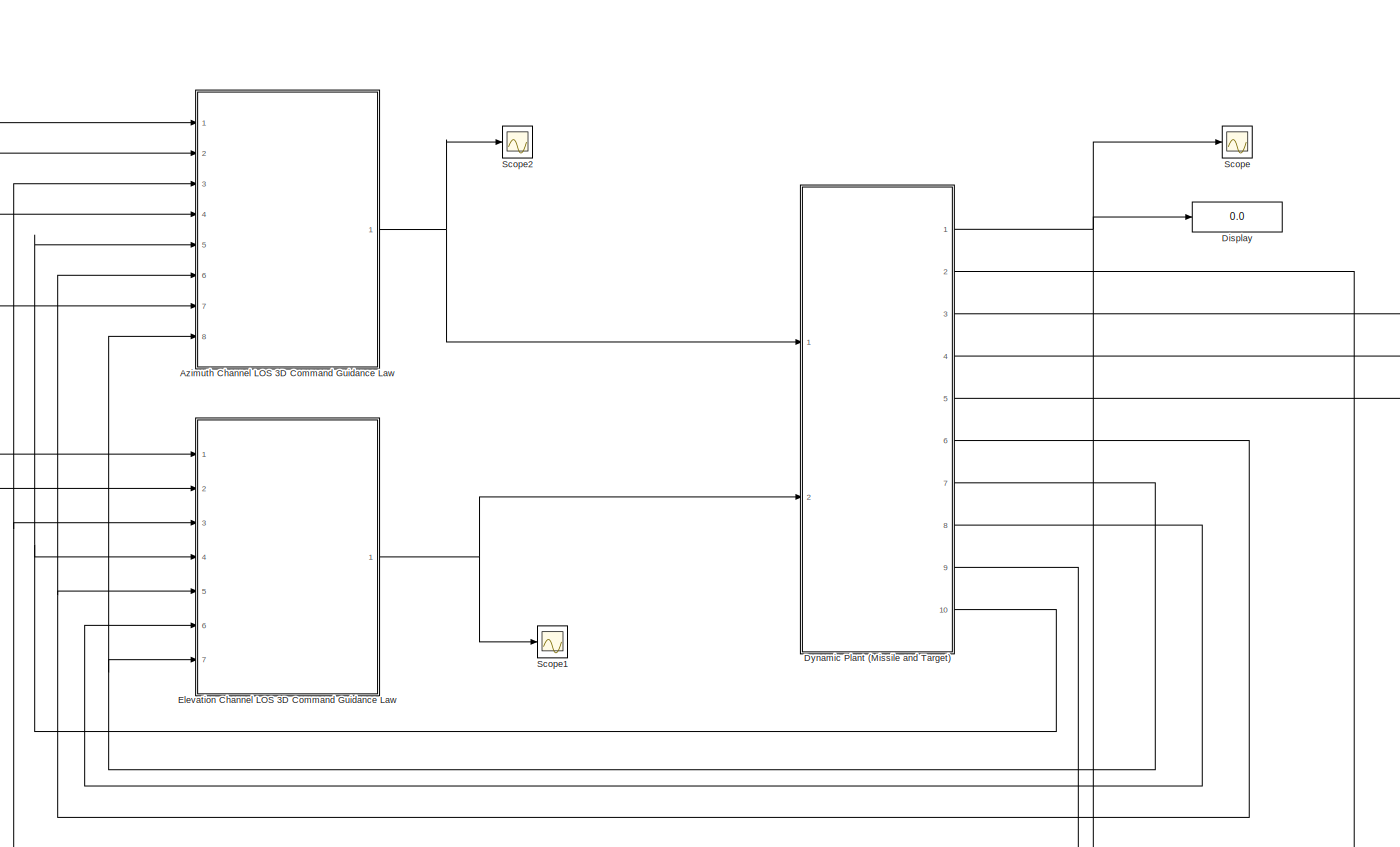
[diagram: root canvas - part 1/1, most of the canvas]
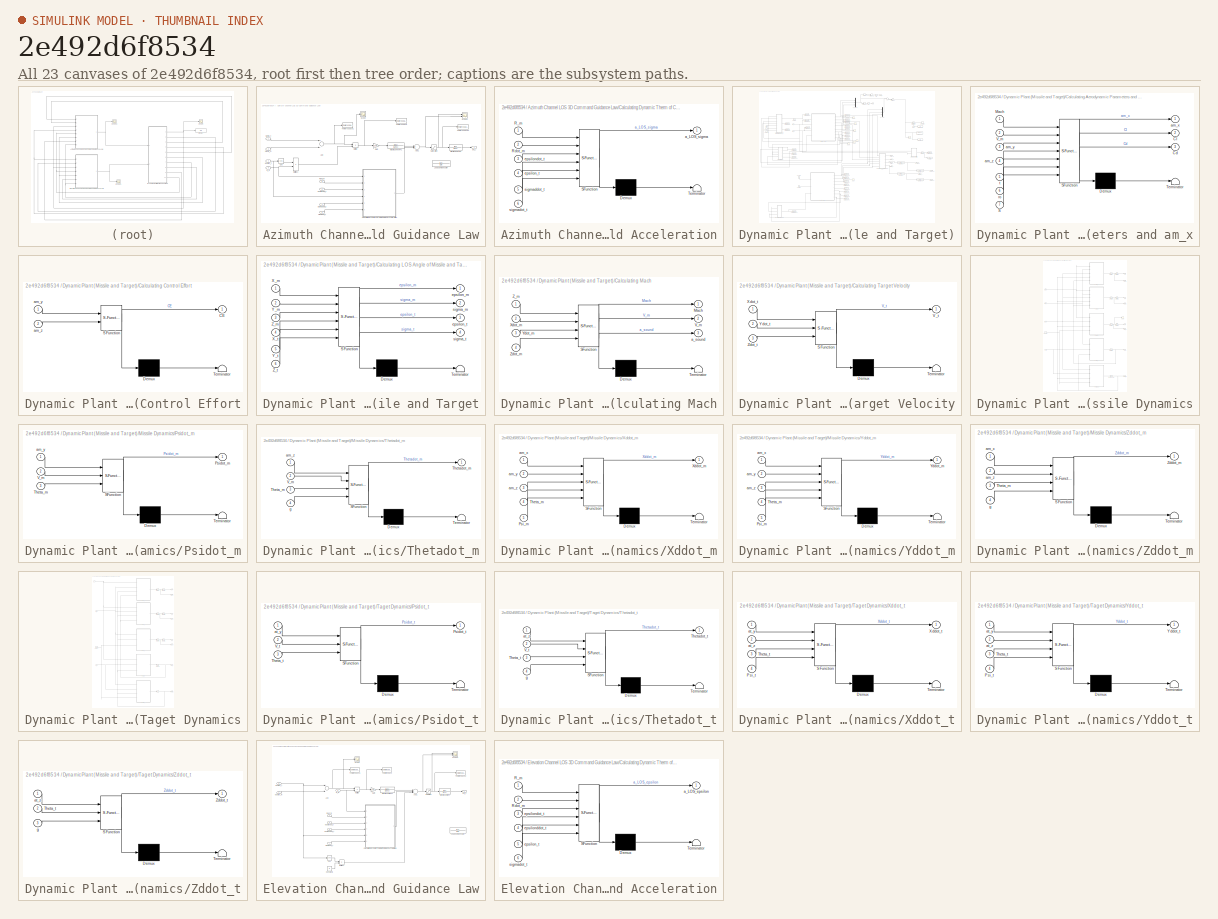
[diagram: thumbnail index - all 23 canvases of the model, root first then tree order]
MODEL slx_2e492d6f8534
KIND model
CONFIG AbsTol = auto
CONFIG EnableMultiTasking = off
CONFIG FixedStep = 0.0001
CONFIG InitFcn = Initial_Data
CONFIG MaxStep = auto
CONFIG MinStep = auto
CONFIG RelTol = 1e-3
CONFIG SampleTimeConstraint = Unconstrained
CONFIG Solver = VariableStepAuto
CONFIG SolverName = VariableStepAuto
CONFIG StartTime = 0.0
CONFIG StopFcn = Plots_Problme_2_Part_C
CONFIG StopTime = 12
BLOCK [SubSystem] Azimuth Channel LOS 3D Command Guidance Law
  Ports = [8, 1]
  RequestExecContextInheritance = off
BLOCK [Sum] Azimuth Channel LOS 3D Command Guidance Law/Add
  InputSameDT = off
  Inputs = +-
  OutDataTypeStr = Inherit: Inherit via internal rule
  Ports = [2, 1]
  SaturateOnIntegerOverflow = off
BLOCK [Sum] Azimuth Channel LOS 3D Command Guidance Law/Add1
  InputSameDT = off
  OutDataTypeStr = Inherit: Inherit via internal rule
  Ports = [2, 1]
  SaturateOnIntegerOverflow = off
BLOCK [SubSystem] Azimuth Channel LOS 3D Command Guidance Law/Calculating Dynamic Therm of Command Acceleration
  ErrorFcn = Stateflow.Translate.translate
  PermitHierarchicalResolution = ExplicitOnly
  Ports = [6, 1]
  RequestExecContextInheritance = off
  SFBlockType = MATLAB Function
  TreatAsAtomicUnit = on
BLOCK [Demux] Azimuth Channel LOS 3D Command Guidance Law/Calculating Dynamic Therm of Command Acceleration/ Demux 
  Outputs = 1
  Ports = [1, 1]
BLOCK [S-Function] Azimuth Channel LOS 3D Command Guidance Law/Calculating Dynamic Therm of Command Acceleration/ SFunction 
  EnableBusSupport = on
  FunctionName = sf_sfun
  PortCounts = [6 2]
  Ports = [6, 2]
  SFcnIsStateOwnerBlock = off
  SFunctionDeploymentMode = off
  Tag = Stateflow S-Function Problem_2_Part_C 20
BLOCK [Terminator] Azimuth Channel LOS 3D Command Guidance Law/Calculating Dynamic Therm of Command Acceleration/ Terminator 
BLOCK [Inport] Azimuth Channel LOS 3D Command Guidance Law/Calculating Dynamic Therm of Command Acceleration/R_m
  IconDisplay = Port number
BLOCK [Inport] Azimuth Channel LOS 3D Command Guidance Law/Calculating Dynamic Therm of Command Acceleration/Rdot_m
  IconDisplay = Port number
  Port = 2
BLOCK [Outport] Azimuth Channel LOS 3D Command Guidance Law/Calculating Dynamic Therm of Command Acceleration/a_LOS_sigma
  IconDisplay = Port number
BLOCK [Inport] Azimuth Channel LOS 3D Command Guidance Law/Calculating Dynamic Therm of Command Acceleration/epsilon_t
  IconDisplay = Port number
  Port = 4
BLOCK [Inport] Azimuth Channel LOS 3D Command Guidance Law/Calculating Dynamic Therm of Command Acceleration/epsilondot_t
  IconDisplay = Port number
  Port = 3
BLOCK [Inport] Azimuth Channel LOS 3D Command Guidance Law/Calculating Dynamic Therm of Command Acceleration/sigmaddot_t
  IconDisplay = Port number
  Port = 5
BLOCK [Inport] Azimuth Channel LOS 3D Command Guidance Law/Calculating Dynamic Therm of Command Acceleration/sigmadot_t
  IconDisplay = Port number
  Port = 6
BLOCK [Trigonometry] Azimuth Channel LOS 3D Command Guidance Law/Cos
  Operator = cos
  Ports = [1, 1]
BLOCK [Gain] Azimuth Channel LOS 3D Command Guidance Law/Gain
  Gain = gain
  OutDataTypeStr = Inherit: Inherit via internal rule
  ParamDataTypeStr = Inherit: Inherit via internal rule
  SaturateOnIntegerOverflow = off
BLOCK [TransferFcn] Azimuth Channel LOS 3D Command Guidance Law/Lead Compensator
  Denominator = [1 B]
  Numerator = [1 A]
BLOCK [TransferFcn] Azimuth Channel LOS 3D Command Guidance Law/Missile Control TF
  Denominator = [0.2 1]
  Numerator = [0 1]
BLOCK [TransferFcn] Azimuth Channel LOS 3D Command Guidance Law/Missile Control TF1
  Denominator = [1/20 1]
  Numerator = [1/2 1]
BLOCK [Product] Azimuth Channel LOS 3D Command Guidance Law/Multiply
  InputSameDT = off
  OutDataTypeStr = Inherit: Inherit via internal rule
  Ports = [2, 1]
  RndMeth = Floor
  SaturateOnIntegerOverflow = off
BLOCK [Product] Azimuth Channel LOS 3D Command Guidance Law/Multiply1
  InputSameDT = off
  OutDataTypeStr = Inherit: Inherit via internal rule
  Ports = [2, 1]
  RndMeth = Floor
  SaturateOnIntegerOverflow = off
BLOCK [Inport] Azimuth Channel LOS 3D Command Guidance Law/R_m
  IconDisplay = Port number
  Port = 3
BLOCK [Inport] Azimuth Channel LOS 3D Command Guidance Law/Rdot_m
  IconDisplay = Port number
  Port = 5
BLOCK [Saturate] Azimuth Channel LOS 3D Command Guidance Law/Saturation
  InputPortMap = u0
  LowerLimit = -20*g
  Ports = [1, 1]
  UpperLimit = 20*g
BLOCK [Scope] Azimuth Channel LOS 3D Command Guidance Law/Scope
  Floating = off
  NumInputPorts = 1
  Ports = [1]
  ScopeSpecificationString = Simulink.scopes.TimeScopeBlockCfg('CurrentConfiguration', extmgr.ConfigurationSet(extmgr.Configuration('Core','General UI',true),extmgr.Configuration('Core','Source UI',true),extmgr.Configuration('Sources','WiredSimulink',true,'DataLoggingVariableName','ScopeData4'),extmgr.Configuration('Visuals','Time Domain',true,'SerializedDisplays',{struct('MinYLimReal','-0.00473','MaxYLimReal','0.01904','YLab...<+1362ch>
BLOCK [Scope] Azimuth Channel LOS 3D Command Guidance Law/Scope2
  Floating = off
  NumInputPorts = 2
  Ports = [2]
  ScopeSpecificationString = Simulink.scopes.TimeScopeBlockCfg('CurrentConfiguration', extmgr.ConfigurationSet(extmgr.Configuration('Core','General UI',true),extmgr.Configuration('Core','Source UI',true),extmgr.Configuration('Sources','WiredSimulink',true,'DataLoggingVariableName','ScopeData3'),extmgr.Configuration('Visuals','Time Domain',true,'SerializedDisplays',{struct('MinYLimReal','-299.54037','MaxYLimReal','154.28748','...<+1436ch>
BLOCK [ToWorkspace] Azimuth Channel LOS 3D Command Guidance Law/To Workspace
  FixptAsFi = on
  MaxDataPoints = inf
  Ports = [1]
  SampleTime = -1
  Save2DSignal = 3-D array (concatenate along third dimension)
  SaveFormat = Timeseries
  VariableName = d_sigma
BLOCK [ToWorkspace] Azimuth Channel LOS 3D Command Guidance Law/To Workspace1
  FixptAsFi = on
  MaxDataPoints = inf
  Ports = [1]
  SampleTime = -1
  Save2DSignal = 3-D array (concatenate along third dimension)
  SaveFormat = Timeseries
  VariableName = delta_sigma
BLOCK [ToWorkspace] Azimuth Channel LOS 3D Command Guidance Law/To Workspace2
  FixptAsFi = on
  MaxDataPoints = inf
  Ports = [1]
  SampleTime = -1
  Save2DSignal = 3-D array (concatenate along third dimension)
  SaveFormat = Timeseries
  VariableName = ac_y
BLOCK [Outport] Azimuth Channel LOS 3D Command Guidance Law/am_y
  IconDisplay = Port number
BLOCK [Inport] Azimuth Channel LOS 3D Command Guidance Law/epsilon_t
  IconDisplay = Port number
  Port = 4
BLOCK [Inport] Azimuth Channel LOS 3D Command Guidance Law/epsilondot_t
  IconDisplay = Port number
  Port = 6
BLOCK [Inport] Azimuth Channel LOS 3D Command Guidance Law/sigma_m
  IconDisplay = Port number
  Port = 2
BLOCK [Inport] Azimuth Channel LOS 3D Command Guidance Law/sigma_t
  IconDisplay = Port number
BLOCK [Inport] Azimuth Channel LOS 3D Command Guidance Law/sigmaddot_t
  IconDisplay = Port number
  Port = 7
BLOCK [Inport] Azimuth Channel LOS 3D Command Guidance Law/sigmadot_t
  IconDisplay = Port number
  Port = 8
BLOCK [Display] Display
  Decimation = 1
  Ports = [1]
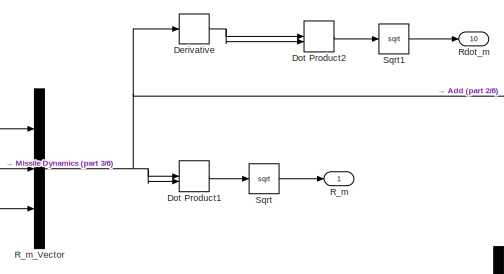
[diagram: Dynamic Plant (Missile and Target) - part 1/6, top center region]
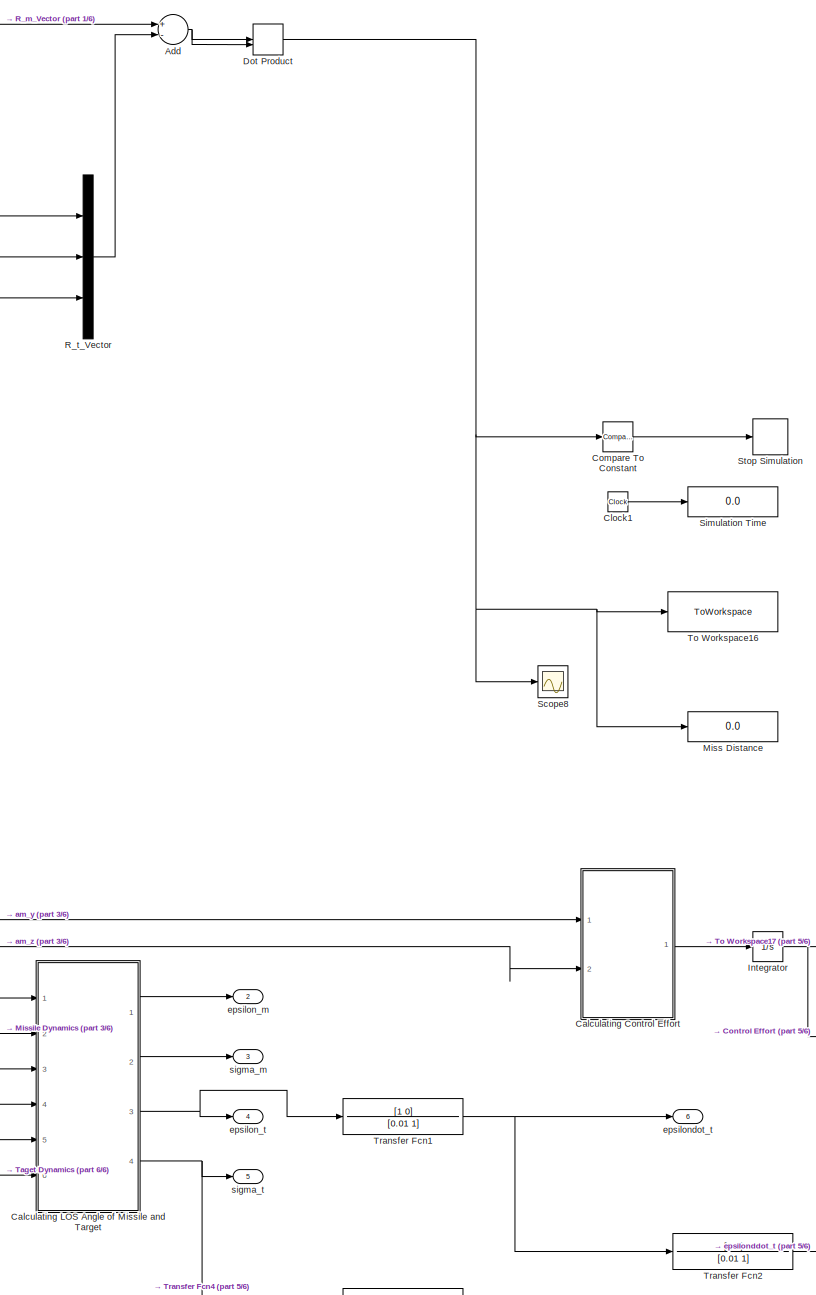
[diagram: Dynamic Plant (Missile and Target) - part 2/6, middle right region]
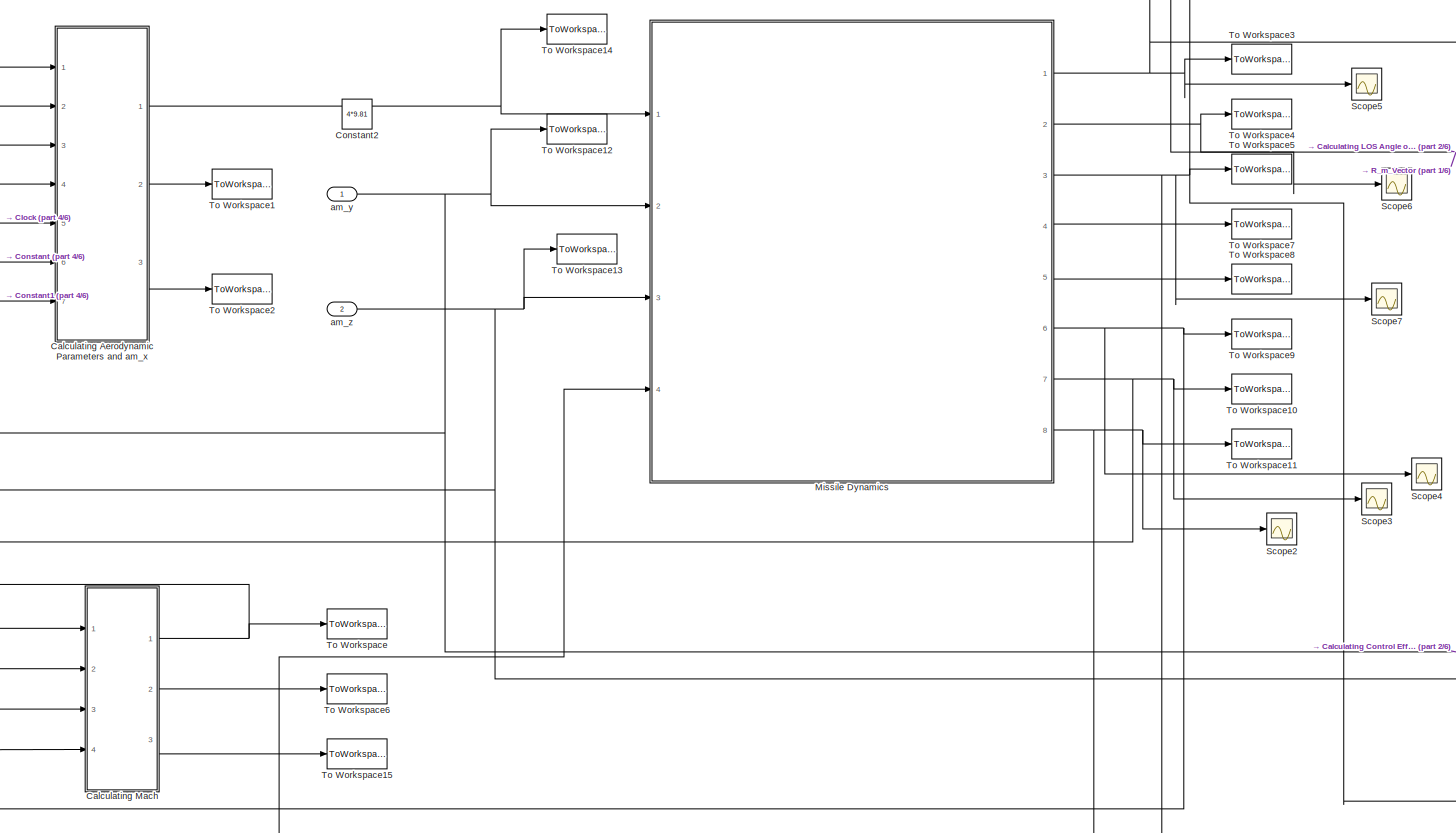
[diagram: Dynamic Plant (Missile and Target) - part 3/6, middle left region]
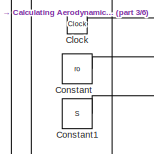
[diagram: Dynamic Plant (Missile and Target) - part 4/6, top left region]
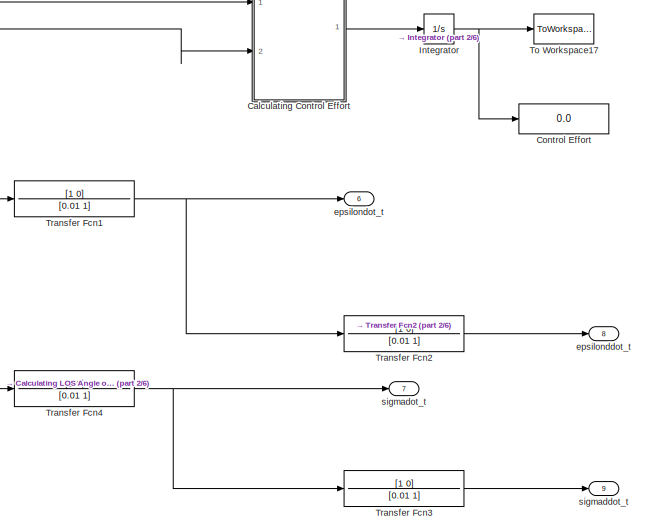
[diagram: Dynamic Plant (Missile and Target) - part 5/6, middle right region]
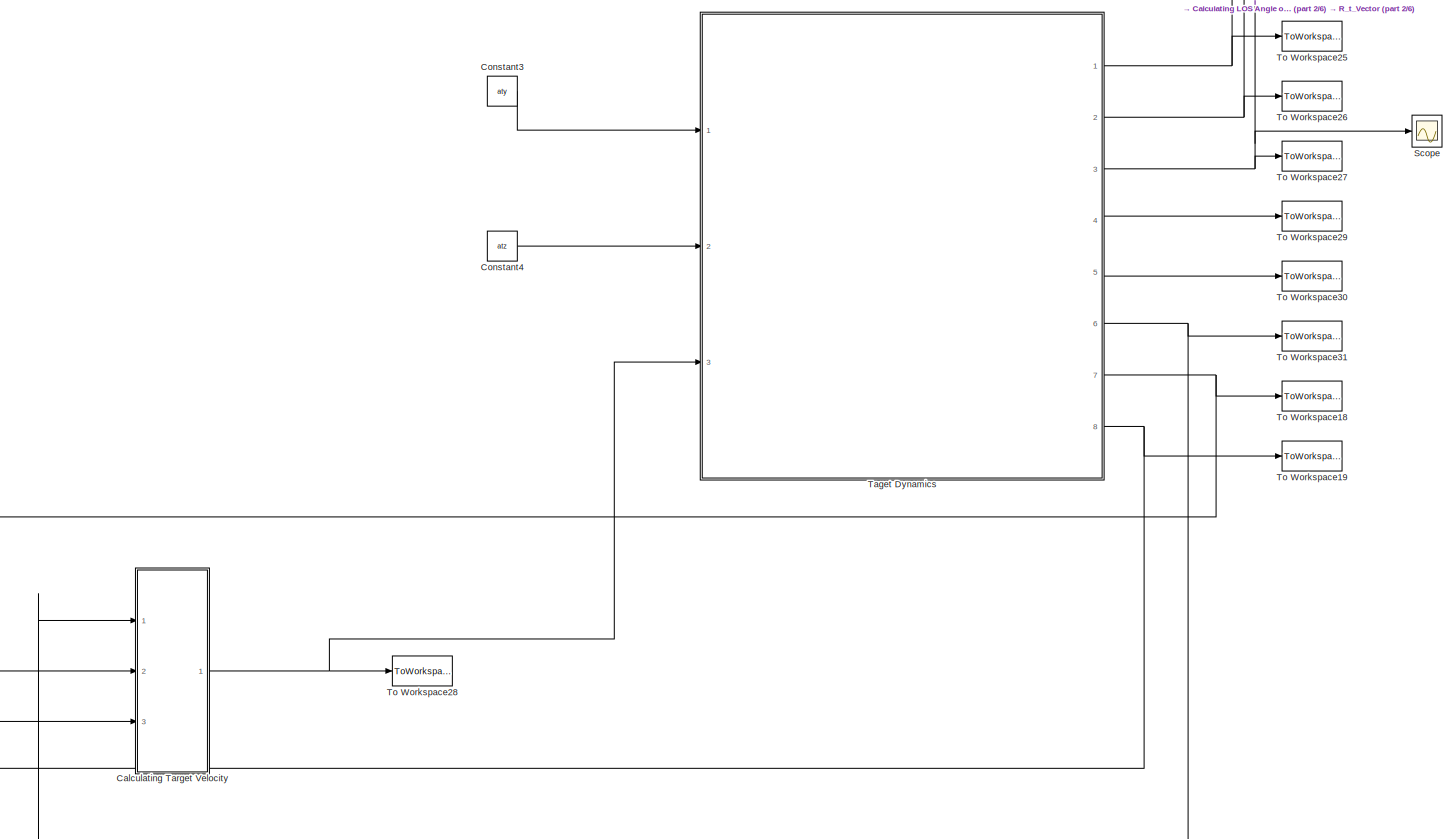
[diagram: Dynamic Plant (Missile and Target) - part 6/6, bottom left region]
BLOCK [SubSystem] Dynamic Plant (Missile and Target)
  Ports = [2, 10]
  RequestExecContextInheritance = off
BLOCK [Sum] Dynamic Plant (Missile and Target)/Add
  InputSameDT = off
  Inputs = +-
  OutDataTypeStr = Inherit: Inherit via internal rule
  Ports = [2, 1]
  SaturateOnIntegerOverflow = off
BLOCK [SubSystem] Dynamic Plant (Missile and Target)/Calculating Aerodynamic Parameters and am_x
  ErrorFcn = Stateflow.Translate.translate
  PermitHierarchicalResolution = ExplicitOnly
  Ports = [7, 3]
  RequestExecContextInheritance = off
  SFBlockType = MATLAB Function
  TreatAsAtomicUnit = on
BLOCK [Demux] Dynamic Plant (Missile and Target)/Calculating Aerodynamic Parameters and am_x/ Demux 
  Outputs = 1
  Ports = [1, 1]
BLOCK [S-Function] Dynamic Plant (Missile and Target)/Calculating Aerodynamic Parameters and am_x/ SFunction 
  EnableBusSupport = on
  FunctionName = sf_sfun
  PortCounts = [7 4]
  Ports = [7, 4]
  SFcnIsStateOwnerBlock = off
  SFunctionDeploymentMode = off
  Tag = Stateflow S-Function Problem_2_Part_C 2
BLOCK [Terminator] Dynamic Plant (Missile and Target)/Calculating Aerodynamic Parameters and am_x/ Terminator 
BLOCK [Outport] Dynamic Plant (Missile and Target)/Calculating Aerodynamic Parameters and am_x/Cd
  IconDisplay = Port number
  Port = 3
BLOCK [Outport] Dynamic Plant (Missile and Target)/Calculating Aerodynamic Parameters and am_x/Cl
  IconDisplay = Port number
  Port = 2
BLOCK [Inport] Dynamic Plant (Missile and Target)/Calculating Aerodynamic Parameters and am_x/Mach
  IconDisplay = Port number
BLOCK [Inport] Dynamic Plant (Missile and Target)/Calculating Aerodynamic Parameters and am_x/S
  IconDisplay = Port number
  Port = 7
BLOCK [Inport] Dynamic Plant (Missile and Target)/Calculating Aerodynamic Parameters and am_x/V_m
  IconDisplay = Port number
  Port = 2
BLOCK [Outport] Dynamic Plant (Missile and Target)/Calculating Aerodynamic Parameters and am_x/am_x
  IconDisplay = Port number
BLOCK [Inport] Dynamic Plant (Missile and Target)/Calculating Aerodynamic Parameters and am_x/am_y
  IconDisplay = Port number
  Port = 3
BLOCK [Inport] Dynamic Plant (Missile and Target)/Calculating Aerodynamic Parameters and am_x/am_z
  IconDisplay = Port number
  Port = 4
BLOCK [Inport] Dynamic Plant (Missile and Target)/Calculating Aerodynamic Parameters and am_x/ro
  IconDisplay = Port number
  Port = 6
BLOCK [Inport] Dynamic Plant (Missile and Target)/Calculating Aerodynamic Parameters and am_x/t
  IconDisplay = Port number
  Port = 5
BLOCK [SubSystem] Dynamic Plant (Missile and Target)/Calculating Control Effort
  ErrorFcn = Stateflow.Translate.translate
  PermitHierarchicalResolution = ExplicitOnly
  Ports = [2, 1]
  RequestExecContextInheritance = off
  SFBlockType = MATLAB Function
  TreatAsAtomicUnit = on
BLOCK [Demux] Dynamic Plant (Missile and Target)/Calculating Control Effort/ Demux 
  Outputs = 1
  Ports = [1, 1]
BLOCK [S-Function] Dynamic Plant (Missile and Target)/Calculating Control Effort/ SFunction 
  EnableBusSupport = on
  FunctionName = sf_sfun
  PortCounts = [2 2]
  Ports = [2, 2]
  SFcnIsStateOwnerBlock = off
  SFunctionDeploymentMode = off
  Tag = Stateflow S-Function Problem_2_Part_C 17
BLOCK [Terminator] Dynamic Plant (Missile and Target)/Calculating Control Effort/ Terminator 
BLOCK [Outport] Dynamic Plant (Missile and Target)/Calculating Control Effort/CE
  IconDisplay = Port number
BLOCK [Inport] Dynamic Plant (Missile and Target)/Calculating Control Effort/am_y
  IconDisplay = Port number
BLOCK [Inport] Dynamic Plant (Missile and Target)/Calculating Control Effort/am_z
  IconDisplay = Port number
  Port = 2
BLOCK [SubSystem] Dynamic Plant (Missile and Target)/Calculating LOS Angle of Missile and Target
  ErrorFcn = Stateflow.Translate.translate
  PermitHierarchicalResolution = ExplicitOnly
  Ports = [6, 4]
  RequestExecContextInheritance = off
  SFBlockType = MATLAB Function
  TreatAsAtomicUnit = on
BLOCK [Demux] Dynamic Plant (Missile and Target)/Calculating LOS Angle of Missile and Target/ Demux 
  Outputs = 1
  Ports = [1, 1]
BLOCK [S-Function] Dynamic Plant (Missile and Target)/Calculating LOS Angle of Missile and Target/ SFunction 
  EnableBusSupport = on
  FunctionName = sf_sfun
  PortCounts = [6 5]
  Ports = [6, 5]
  SFcnIsStateOwnerBlock = off
  SFunctionDeploymentMode = off
  Tag = Stateflow S-Function Problem_2_Part_C 15
BLOCK [Terminator] Dynamic Plant (Missile and Target)/Calculating LOS Angle of Missile and Target/ Terminator 
BLOCK [Inport] Dynamic Plant (Missile and Target)/Calculating LOS Angle of Missile and Target/X_m
  IconDisplay = Port number
BLOCK [Inport] Dynamic Plant (Missile and Target)/Calculating LOS Angle of Missile and Target/X_t
  IconDisplay = Port number
  Port = 4
BLOCK [Inport] Dynamic Plant (Missile and Target)/Calculating LOS Angle of Missile and Target/Y_m
  IconDisplay = Port number
  Port = 2
BLOCK [Inport] Dynamic Plant (Missile and Target)/Calculating LOS Angle of Missile and Target/Y_t
  IconDisplay = Port number
  Port = 5
BLOCK [Inport] Dynamic Plant (Missile and Target)/Calculating LOS Angle of Missile and Target/Z_m
  IconDisplay = Port number
  Port = 3
BLOCK [Inport] Dynamic Plant (Missile and Target)/Calculating LOS Angle of Missile and Target/Z_t
  IconDisplay = Port number
  Port = 6
BLOCK [Outport] Dynamic Plant (Missile and Target)/Calculating LOS Angle of Missile and Target/epsilon_m
  IconDisplay = Port number
BLOCK [Outport] Dynamic Plant (Missile and Target)/Calculating LOS Angle of Missile and Target/epsilon_t
  IconDisplay = Port number
  Port = 3
BLOCK [Outport] Dynamic Plant (Missile and Target)/Calculating LOS Angle of Missile and Target/sigma_m
  IconDisplay = Port number
  Port = 2
BLOCK [Outport] Dynamic Plant (Missile and Target)/Calculating LOS Angle of Missile and Target/sigma_t
  IconDisplay = Port number
  Port = 4
BLOCK [SubSystem] Dynamic Plant (Missile and Target)/Calculating Mach
  ErrorFcn = Stateflow.Translate.translate
  PermitHierarchicalResolution = ExplicitOnly
  Ports = [4, 3]
  RequestExecContextInheritance = off
  SFBlockType = MATLAB Function
  TreatAsAtomicUnit = on
BLOCK [Demux] Dynamic Plant (Missile and Target)/Calculating Mach/ Demux 
  Outputs = 1
  Ports = [1, 1]
BLOCK [S-Function] Dynamic Plant (Missile and Target)/Calculating Mach/ SFunction 
  EnableBusSupport = on
  FunctionName = sf_sfun
  PortCounts = [4 4]
  Ports = [4, 4]
  SFcnIsStateOwnerBlock = off
  SFunctionDeploymentMode = off
  Tag = Stateflow S-Function Problem_2_Part_C 1
BLOCK [Terminator] Dynamic Plant (Missile and Target)/Calculating Mach/ Terminator 
BLOCK [Outport] Dynamic Plant (Missile and Target)/Calculating Mach/Mach
  IconDisplay = Port number
BLOCK [Outport] Dynamic Plant (Missile and Target)/Calculating Mach/V_m
  IconDisplay = Port number
  Port = 2
BLOCK [Inport] Dynamic Plant (Missile and Target)/Calculating Mach/Xdot_m
  IconDisplay = Port number
  Port = 2
BLOCK [Inport] Dynamic Plant (Missile and Target)/Calculating Mach/Ydot_m
  IconDisplay = Port number
  Port = 3
BLOCK [Inport] Dynamic Plant (Missile and Target)/Calculating Mach/Z_m
  IconDisplay = Port number
BLOCK [Inport] Dynamic Plant (Missile and Target)/Calculating Mach/Zdot_m
  IconDisplay = Port number
  Port = 4
BLOCK [Outport] Dynamic Plant (Missile and Target)/Calculating Mach/a_sound
  IconDisplay = Port number
  Port = 3
BLOCK [SubSystem] Dynamic Plant (Missile and Target)/Calculating Target Velocity
  ErrorFcn = Stateflow.Translate.translate
  PermitHierarchicalResolution = ExplicitOnly
  Ports = [3, 1]
  RequestExecContextInheritance = off
  SFBlockType = MATLAB Function
  TreatAsAtomicUnit = on
BLOCK [Demux] Dynamic Plant (Missile and Target)/Calculating Target Velocity/ Demux 
  Outputs = 1
  Ports = [1, 1]
BLOCK [S-Function] Dynamic Plant (Missile and Target)/Calculating Target Velocity/ SFunction 
  EnableBusSupport = on
  FunctionName = sf_sfun
  PortCounts = [3 2]
  Ports = [3, 2]
  SFcnIsStateOwnerBlock = off
  SFunctionDeploymentMode = off
  Tag = Stateflow S-Function Problem_2_Part_C 4
BLOCK [Terminator] Dynamic Plant (Missile and Target)/Calculating Target Velocity/ Terminator 
BLOCK [Outport] Dynamic Plant (Missile and Target)/Calculating Target Velocity/V_t
  IconDisplay = Port number
BLOCK [Inport] Dynamic Plant (Missile and Target)/Calculating Target Velocity/Xdot_t
  IconDisplay = Port number
BLOCK [Inport] Dynamic Plant (Missile and Target)/Calculating Target Velocity/Ydot_t
  IconDisplay = Port number
  Port = 2
BLOCK [Inport] Dynamic Plant (Missile and Target)/Calculating Target Velocity/Zdot_t
  IconDisplay = Port number
  Port = 3
BLOCK [Clock] Dynamic Plant (Missile and Target)/Clock
BLOCK [Clock] Dynamic Plant (Missile and Target)/Clock1
BLOCK [Reference] Dynamic Plant (Missile and Target)/Compare To Constant  REF=simulink/Logic and Bit
Operations/Compare
To Constant
  Ports = [1, 1]
  SourceBlock = simulink/Logic and Bit\nOperations/Compare\nTo Constant
  SourceProductBaseCode = SL
  SourceProductName = Simulink
  SourceType = Compare To Constant
BLOCK [Constant] Dynamic Plant (Missile and Target)/Constant
  Value = ro
BLOCK [Constant] Dynamic Plant (Missile and Target)/Constant1
  Value = S
BLOCK [Constant] Dynamic Plant (Missile and Target)/Constant2
  Commented = on
  Value = 4*9.81
BLOCK [Constant] Dynamic Plant (Missile and Target)/Constant3
  Value = aty
BLOCK [Constant] Dynamic Plant (Missile and Target)/Constant4
  Value = atz
BLOCK [Display] Dynamic Plant (Missile and Target)/Control Effort
  Decimation = 1
  Ports = [1]
BLOCK [Derivative] Dynamic Plant (Missile and Target)/Derivative
BLOCK [DotProduct] Dynamic Plant (Missile and Target)/Dot Product
  OutDataTypeStr = Inherit: Inherit via internal rule
BLOCK [DotProduct] Dynamic Plant (Missile and Target)/Dot Product1
  OutDataTypeStr = Inherit: Inherit via internal rule
BLOCK [DotProduct] Dynamic Plant (Missile and Target)/Dot Product2
  OutDataTypeStr = Inherit: Inherit via internal rule
BLOCK [Integrator] Dynamic Plant (Missile and Target)/Integrator
  Ports = [1, 1]
BLOCK [Display] Dynamic Plant (Missile and Target)/Miss Distance
  Decimation = 1
  Ports = [1]
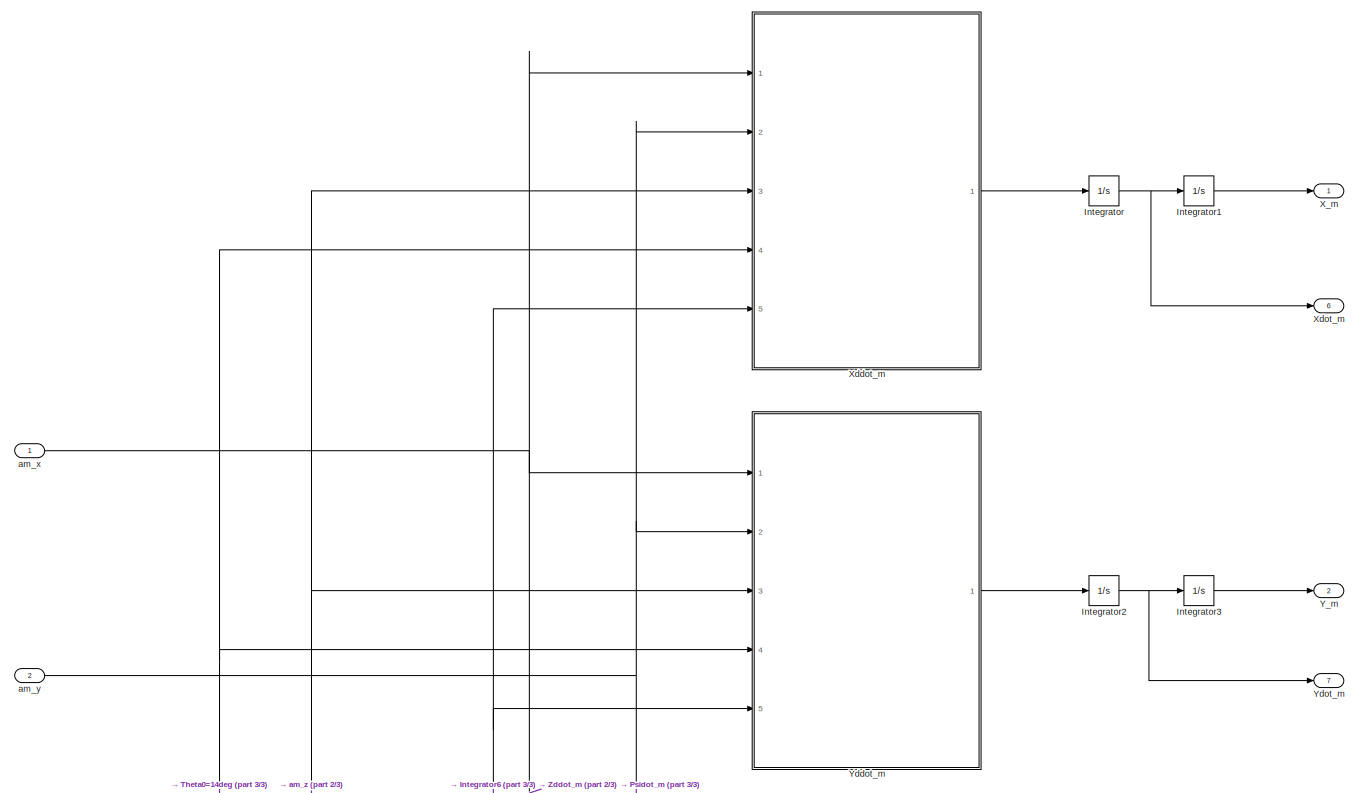
[diagram: Dynamic Plant (Missile and Target)/Missile Dynamics - part 1/3, full width, top band]
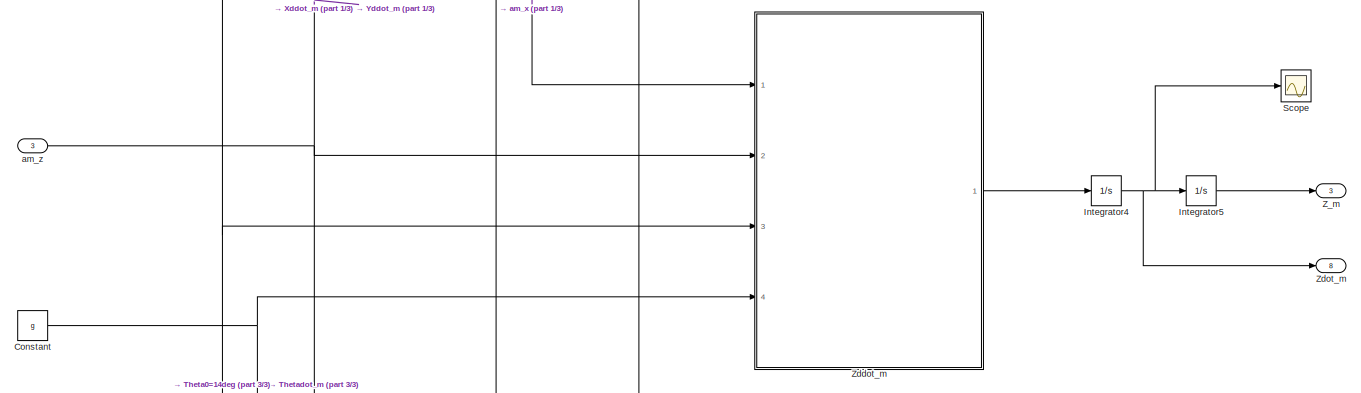
[diagram: Dynamic Plant (Missile and Target)/Missile Dynamics - part 2/3, full width, middle band]
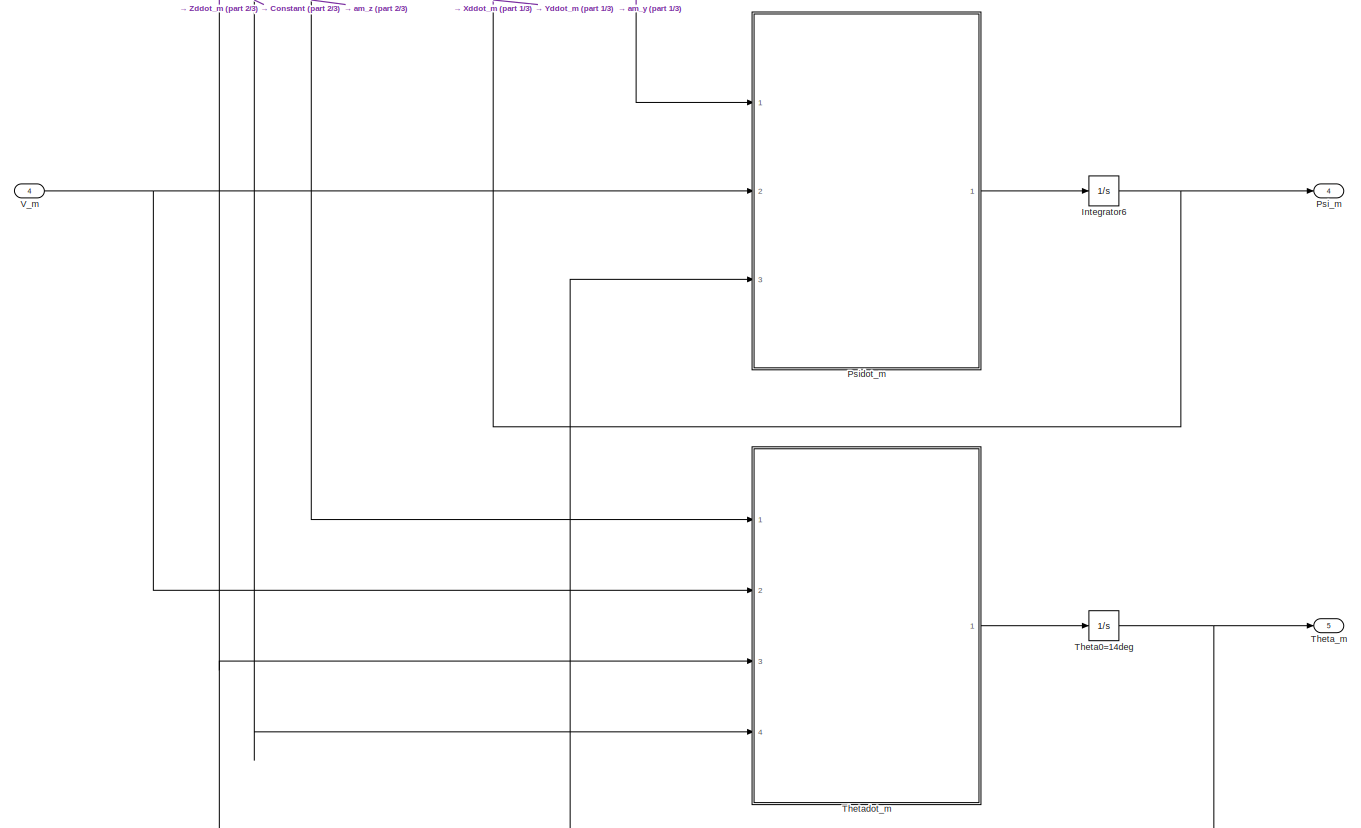
[diagram: Dynamic Plant (Missile and Target)/Missile Dynamics - part 3/3, full width, bottom band]
BLOCK [SubSystem] Dynamic Plant (Missile and Target)/Missile Dynamics
  Ports = [4, 8]
  RequestExecContextInheritance = off
BLOCK [Constant] Dynamic Plant (Missile and Target)/Missile Dynamics/Constant
  Value = g
BLOCK [Integrator] Dynamic Plant (Missile and Target)/Missile Dynamics/Integrator
  InitialCondition = 990
  Ports = [1, 1]
BLOCK [Integrator] Dynamic Plant (Missile and Target)/Missile Dynamics/Integrator1
  InitialCondition = 0.001
  Ports = [1, 1]
BLOCK [Integrator] Dynamic Plant (Missile and Target)/Missile Dynamics/Integrator2
  Ports = [1, 1]
BLOCK [Integrator] Dynamic Plant (Missile and Target)/Missile Dynamics/Integrator3
  Ports = [1, 1]
BLOCK [Integrator] Dynamic Plant (Missile and Target)/Missile Dynamics/Integrator4
  InitialCondition = sqrt(1000^2-990^2)
  Ports = [1, 1]
BLOCK [Integrator] Dynamic Plant (Missile and Target)/Missile Dynamics/Integrator5
  Ports = [1, 1]
BLOCK [Integrator] Dynamic Plant (Missile and Target)/Missile Dynamics/Integrator6
  Ports = [1, 1]
BLOCK [Outport] Dynamic Plant (Missile and Target)/Missile Dynamics/Psi_m
  IconDisplay = Port number
  Port = 4
BLOCK [SubSystem] Dynamic Plant (Missile and Target)/Missile Dynamics/Psidot_m
  ErrorFcn = Stateflow.Translate.translate
  PermitHierarchicalResolution = ExplicitOnly
  Ports = [3, 1]
  RequestExecContextInheritance = off
  SFBlockType = MATLAB Function
  TreatAsAtomicUnit = on
BLOCK [Demux] Dynamic Plant (Missile and Target)/Missile Dynamics/Psidot_m/ Demux 
  Outputs = 1
  Ports = [1, 1]
BLOCK [S-Function] Dynamic Plant (Missile and Target)/Missile Dynamics/Psidot_m/ SFunction 
  EnableBusSupport = on
  FunctionName = sf_sfun
  PortCounts = [3 2]
  Ports = [3, 2]
  SFcnIsStateOwnerBlock = off
  SFunctionDeploymentMode = off
  Tag = Stateflow S-Function Problem_2_Part_C 7
BLOCK [Terminator] Dynamic Plant (Missile and Target)/Missile Dynamics/Psidot_m/ Terminator 
BLOCK [Outport] Dynamic Plant (Missile and Target)/Missile Dynamics/Psidot_m/Psidot_m
  IconDisplay = Port number
BLOCK [Inport] Dynamic Plant (Missile and Target)/Missile Dynamics/Psidot_m/Theta_m
  IconDisplay = Port number
  Port = 3
BLOCK [Inport] Dynamic Plant (Missile and Target)/Missile Dynamics/Psidot_m/V_m
  IconDisplay = Port number
  Port = 2
BLOCK [Inport] Dynamic Plant (Missile and Target)/Missile Dynamics/Psidot_m/am_y
  IconDisplay = Port number
BLOCK [Scope] Dynamic Plant (Missile and Target)/Missile Dynamics/Scope
  Floating = off
  NumInputPorts = 1
  Ports = [1]
  ScopeSpecificationString = Simulink.scopes.TimeScopeBlockCfg('CurrentConfiguration', extmgr.ConfigurationSet(extmgr.Configuration('Core','General UI',true),extmgr.Configuration('Core','Source UI',true),extmgr.Configuration('Sources','WiredSimulink',true,'DataLoggingVariableName','ScopeData1'),extmgr.Configuration('Visuals','Time Domain',true,'SerializedDisplays',{struct('MinYLimReal','28.65118','MaxYLimReal','433.24253','YL...<+1380ch>
BLOCK [Integrator] Dynamic Plant (Missile and Target)/Missile Dynamics/Theta0=14deg
  InitialCondition = 0.244346
  Ports = [1, 1]
BLOCK [Outport] Dynamic Plant (Missile and Target)/Missile Dynamics/Theta_m
  IconDisplay = Port number
  Port = 5
BLOCK [SubSystem] Dynamic Plant (Missile and Target)/Missile Dynamics/Thetadot_m
  ErrorFcn = Stateflow.Translate.translate
  PermitHierarchicalResolution = ExplicitOnly
  Ports = [4, 1]
  RequestExecContextInheritance = off
  SFBlockType = MATLAB Function
  TreatAsAtomicUnit = on
BLOCK [Demux] Dynamic Plant (Missile and Target)/Missile Dynamics/Thetadot_m/ Demux 
  Outputs = 1
  Ports = [1, 1]
BLOCK [S-Function] Dynamic Plant (Missile and Target)/Missile Dynamics/Thetadot_m/ SFunction 
  EnableBusSupport = on
  FunctionName = sf_sfun
  PortCounts = [4 2]
  Ports = [4, 2]
  SFcnIsStateOwnerBlock = off
  SFunctionDeploymentMode = off
  Tag = Stateflow S-Function Problem_2_Part_C 8
BLOCK [Terminator] Dynamic Plant (Missile and Target)/Missile Dynamics/Thetadot_m/ Terminator 
BLOCK [Inport] Dynamic Plant (Missile and Target)/Missile Dynamics/Thetadot_m/Theta_m
  IconDisplay = Port number
  Port = 3
BLOCK [Outport] Dynamic Plant (Missile and Target)/Missile Dynamics/Thetadot_m/Thetadot_m
  IconDisplay = Port number
BLOCK [Inport] Dynamic Plant (Missile and Target)/Missile Dynamics/Thetadot_m/V_m
  IconDisplay = Port number
  Port = 2
BLOCK [Inport] Dynamic Plant (Missile and Target)/Missile Dynamics/Thetadot_m/am_z
  IconDisplay = Port number
BLOCK [Inport] Dynamic Plant (Missile and Target)/Missile Dynamics/Thetadot_m/g
  IconDisplay = Port number
  Port = 4
BLOCK [Inport] Dynamic Plant (Missile and Target)/Missile Dynamics/V_m
  IconDisplay = Port number
  Port = 4
BLOCK [Outport] Dynamic Plant (Missile and Target)/Missile Dynamics/X_m
  IconDisplay = Port number
BLOCK [SubSystem] Dynamic Plant (Missile and Target)/Missile Dynamics/Xddot_m
  ErrorFcn = Stateflow.Translate.translate
  PermitHierarchicalResolution = ExplicitOnly
  Ports = [5, 1]
  RequestExecContextInheritance = off
  SFBlockType = MATLAB Function
  TreatAsAtomicUnit = on
BLOCK [Demux] Dynamic Plant (Missile and Target)/Missile Dynamics/Xddot_m/ Demux 
  Outputs = 1
  Ports = [1, 1]
BLOCK [S-Function] Dynamic Plant (Missile and Target)/Missile Dynamics/Xddot_m/ SFunction 
  EnableBusSupport = on
  FunctionName = sf_sfun
  PortCounts = [5 2]
  Ports = [5, 2]
  SFcnIsStateOwnerBlock = off
  SFunctionDeploymentMode = off
  Tag = Stateflow S-Function Problem_2_Part_C 3
BLOCK [Terminator] Dynamic Plant (Missile and Target)/Missile Dynamics/Xddot_m/ Terminator 
BLOCK [Inport] Dynamic Plant (Missile and Target)/Missile Dynamics/Xddot_m/Psi_m
  IconDisplay = Port number
  Port = 5
BLOCK [Inport] Dynamic Plant (Missile and Target)/Missile Dynamics/Xddot_m/Theta_m
  IconDisplay = Port number
  Port = 4
BLOCK [Outport] Dynamic Plant (Missile and Target)/Missile Dynamics/Xddot_m/Xddot_m
  IconDisplay = Port number
BLOCK [Inport] Dynamic Plant (Missile and Target)/Missile Dynamics/Xddot_m/am_x
  IconDisplay = Port number
BLOCK [Inport] Dynamic Plant (Missile and Target)/Missile Dynamics/Xddot_m/am_y
  IconDisplay = Port number
  Port = 2
BLOCK [Inport] Dynamic Plant (Missile and Target)/Missile Dynamics/Xddot_m/am_z
  IconDisplay = Port number
  Port = 3
BLOCK [Outport] Dynamic Plant (Missile and Target)/Missile Dynamics/Xdot_m
  IconDisplay = Port number
  Port = 6
BLOCK [Outport] Dynamic Plant (Missile and Target)/Missile Dynamics/Y_m
  IconDisplay = Port number
  Port = 2
BLOCK [SubSystem] Dynamic Plant (Missile and Target)/Missile Dynamics/Yddot_m
  ErrorFcn = Stateflow.Translate.translate
  PermitHierarchicalResolution = ExplicitOnly
  Ports = [5, 1]
  RequestExecContextInheritance = off
  SFBlockType = MATLAB Function
  TreatAsAtomicUnit = on
BLOCK [Demux] Dynamic Plant (Missile and Target)/Missile Dynamics/Yddot_m/ Demux 
  Outputs = 1
  Ports = [1, 1]
BLOCK [S-Function] Dynamic Plant (Missile and Target)/Missile Dynamics/Yddot_m/ SFunction 
  EnableBusSupport = on
  FunctionName = sf_sfun
  PortCounts = [5 2]
  Ports = [5, 2]
  SFcnIsStateOwnerBlock = off
  SFunctionDeploymentMode = off
  Tag = Stateflow S-Function Problem_2_Part_C 5
BLOCK [Terminator] Dynamic Plant (Missile and Target)/Missile Dynamics/Yddot_m/ Terminator 
BLOCK [Inport] Dynamic Plant (Missile and Target)/Missile Dynamics/Yddot_m/Psi_m
  IconDisplay = Port number
  Port = 5
BLOCK [Inport] Dynamic Plant (Missile and Target)/Missile Dynamics/Yddot_m/Theta_m
  IconDisplay = Port number
  Port = 4
BLOCK [Outport] Dynamic Plant (Missile and Target)/Missile Dynamics/Yddot_m/Yddot_m
  IconDisplay = Port number
BLOCK [Inport] Dynamic Plant (Missile and Target)/Missile Dynamics/Yddot_m/am_x
  IconDisplay = Port number
BLOCK [Inport] Dynamic Plant (Missile and Target)/Missile Dynamics/Yddot_m/am_y
  IconDisplay = Port number
  Port = 2
BLOCK [Inport] Dynamic Plant (Missile and Target)/Missile Dynamics/Yddot_m/am_z
  IconDisplay = Port number
  Port = 3
BLOCK [Outport] Dynamic Plant (Missile and Target)/Missile Dynamics/Ydot_m
  IconDisplay = Port number
  Port = 7
BLOCK [Outport] Dynamic Plant (Missile and Target)/Missile Dynamics/Z_m
  IconDisplay = Port number
  Port = 3
BLOCK [SubSystem] Dynamic Plant (Missile and Target)/Missile Dynamics/Zddot_m
  ErrorFcn = Stateflow.Translate.translate
  PermitHierarchicalResolution = ExplicitOnly
  Ports = [4, 1]
  RequestExecContextInheritance = off
  SFBlockType = MATLAB Function
  TreatAsAtomicUnit = on
BLOCK [Demux] Dynamic Plant (Missile and Target)/Missile Dynamics/Zddot_m/ Demux 
  Outputs = 1
  Ports = [1, 1]
BLOCK [S-Function] Dynamic Plant (Missile and Target)/Missile Dynamics/Zddot_m/ SFunction 
  EnableBusSupport = on
  FunctionName = sf_sfun
  PortCounts = [4 2]
  Ports = [4, 2]
  SFcnIsStateOwnerBlock = off
  SFunctionDeploymentMode = off
  Tag = Stateflow S-Function Problem_2_Part_C 6
BLOCK [Terminator] Dynamic Plant (Missile and Target)/Missile Dynamics/Zddot_m/ Terminator 
BLOCK [Inport] Dynamic Plant (Missile and Target)/Missile Dynamics/Zddot_m/Theta_m
  IconDisplay = Port number
  Port = 3
BLOCK [Outport] Dynamic Plant (Missile and Target)/Missile Dynamics/Zddot_m/Zddot_m
  IconDisplay = Port number
BLOCK [Inport] Dynamic Plant (Missile and Target)/Missile Dynamics/Zddot_m/am_x
  IconDisplay = Port number
BLOCK [Inport] Dynamic Plant (Missile and Target)/Missile Dynamics/Zddot_m/am_z
  IconDisplay = Port number
  Port = 2
BLOCK [Inport] Dynamic Plant (Missile and Target)/Missile Dynamics/Zddot_m/g
  IconDisplay = Port number
  Port = 4
BLOCK [Outport] Dynamic Plant (Missile and Target)/Missile Dynamics/Zdot_m
  IconDisplay = Port number
  Port = 8
BLOCK [Inport] Dynamic Plant (Missile and Target)/Missile Dynamics/am_x
  IconDisplay = Port number
BLOCK [Inport] Dynamic Plant (Missile and Target)/Missile Dynamics/am_y
  IconDisplay = Port number
  Port = 2
BLOCK [Inport] Dynamic Plant (Missile and Target)/Missile Dynamics/am_z
  IconDisplay = Port number
  Port = 3
BLOCK [Outport] Dynamic Plant (Missile and Target)/R_m
  IconDisplay = Port number
BLOCK [Mux] Dynamic Plant (Missile and Target)/R_m_Vector
  DisplayOption = bar
  Inputs = 3
  Ports = [3, 1]
BLOCK [Mux] Dynamic Plant (Missile and Target)/R_t_Vector
  DisplayOption = bar
  Inputs = 3
  Ports = [3, 1]
BLOCK [Outport] Dynamic Plant (Missile and Target)/Rdot_m
  IconDisplay = Port number
  Port = 10
BLOCK [Scope] Dynamic Plant (Missile and Target)/Scope
  Floating = off
  NumInputPorts = 1
  Ports = [1]
  ScopeSpecificationString = Simulink.scopes.TimeScopeBlockCfg('CurrentConfiguration', extmgr.ConfigurationSet(extmgr.Configuration('Core','General UI',true),extmgr.Configuration('Core','Source UI',true),extmgr.Configuration('Sources','WiredSimulink',true,'DataLoggingVariableName','ScopeData1'),extmgr.Configuration('Visuals','Time Domain',true,'SerializedDisplays',{struct('MinYLimReal','2782.36429','MaxYLimReal','3024.18175',...<+1397ch>
BLOCK [Scope] Dynamic Plant (Missile and Target)/Scope2
  Floating = off
  NumInputPorts = 1
  Ports = [1]
  ScopeSpecificationString = Simulink.scopes.TimeScopeBlockCfg('CurrentConfiguration', extmgr.ConfigurationSet(extmgr.Configuration('Core','General UI',true),extmgr.Configuration('Core','Source UI',true),extmgr.Configuration('Sources','WiredSimulink',true,'DataLoggingVariableName','ScopeData5'),extmgr.Configuration('Visuals','Time Domain',true,'SerializedDisplays',{struct('MinYLimReal','98.76765','MaxYLimReal','521.76472','YL...<+1387ch>
BLOCK [Scope] Dynamic Plant (Missile and Target)/Scope3
  Floating = off
  NumInputPorts = 1
  Ports = [1]
  ScopeSpecificationString = Simulink.scopes.TimeScopeBlockCfg('CurrentConfiguration', extmgr.ConfigurationSet(extmgr.Configuration('Core','General UI',true),extmgr.Configuration('Core','Source UI',true),extmgr.Configuration('Sources','WiredSimulink',true,'DataLoggingVariableName','ScopeData6'),extmgr.Configuration('Visuals','Time Domain',true,'SerializedDisplays',{struct('MinYLimReal','-51.49359','MaxYLimReal','25.94592','YL...<+1412ch>
BLOCK [Scope] Dynamic Plant (Missile and Target)/Scope4
  Floating = off
  NumInputPorts = 1
  Ports = [1]
  ScopeSpecificationString = Simulink.scopes.TimeScopeBlockCfg('CurrentConfiguration', extmgr.ConfigurationSet(extmgr.Configuration('Core','General UI',true),extmgr.Configuration('Core','Source UI',true),extmgr.Configuration('Sources','WiredSimulink',true,'DataLoggingVariableName','ScopeData7'),extmgr.Configuration('Visuals','Time Domain',true,'SerializedDisplays',{struct('MinYLimReal','802.57889','MaxYLimReal','1194.31237','...<+1395ch>
BLOCK [Scope] Dynamic Plant (Missile and Target)/Scope5
  Floating = off
  NumInputPorts = 1
  Ports = [1]
  ScopeSpecificationString = Simulink.scopes.TimeScopeBlockCfg('CurrentConfiguration', extmgr.ConfigurationSet(extmgr.Configuration('Core','General UI',true),extmgr.Configuration('Core','Source UI',true),extmgr.Configuration('Sources','WiredSimulink',true,'DataLoggingVariableName','ScopeData8'),extmgr.Configuration('Visuals','Time Domain',true,'SerializedDisplays',{struct('MinYLimReal','-1392.83499','MaxYLimReal','12535.5249'...<+1399ch>
BLOCK [Scope] Dynamic Plant (Missile and Target)/Scope6
  Floating = off
  NumInputPorts = 1
  Ports = [1]
  ScopeSpecificationString = Simulink.scopes.TimeScopeBlockCfg('CurrentConfiguration', extmgr.ConfigurationSet(extmgr.Configuration('Core','General UI',true),extmgr.Configuration('Core','Source UI',true),extmgr.Configuration('Sources','WiredSimulink',true,'DataLoggingVariableName','ScopeData9'),extmgr.Configuration('Visuals','Time Domain',true,'SerializedDisplays',{struct('MinYLimReal','-191.68598','MaxYLimReal','98.40728','Y...<+1389ch>
BLOCK [Scope] Dynamic Plant (Missile and Target)/Scope7
  Floating = off
  NumInputPorts = 1
  Ports = [1]
  ScopeSpecificationString = Simulink.scopes.TimeScopeBlockCfg('CurrentConfiguration', extmgr.ConfigurationSet(extmgr.Configuration('Core','General UI',true),extmgr.Configuration('Core','Source UI',true),extmgr.Configuration('Sources','WiredSimulink',true,'DataLoggingVariableName','ScopeData10'),extmgr.Configuration('Visuals','Time Domain',true,'SerializedDisplays',{struct('MinYLimReal','-350.51298','MaxYLimReal','3154.61679'...<+1396ch>
BLOCK [Scope] Dynamic Plant (Missile and Target)/Scope8
  Floating = off
  NumInputPorts = 1
  Ports = [1]
  ScopeSpecificationString = Simulink.scopes.TimeScopeBlockCfg('CurrentConfiguration', extmgr.ConfigurationSet(extmgr.Configuration('Core','General UI',true),extmgr.Configuration('Core','Source UI',true),extmgr.Configuration('Sources','WiredSimulink',true,'DataLoggingVariableName','ScopeData2'),extmgr.Configuration('Visuals','Time Domain',true,'SerializedDisplays',{struct('MinYLimReal','-19129994.75','MaxYLimReal','172169972....<+1410ch>
BLOCK [Display] Dynamic Plant (Missile and Target)/Simulation Time
  Decimation = 1
  Ports = [1]
BLOCK [Sqrt] Dynamic Plant (Missile and Target)/Sqrt
BLOCK [Sqrt] Dynamic Plant (Missile and Target)/Sqrt1
BLOCK [Stop] Dynamic Plant (Missile and Target)/Stop Simulation
BLOCK [SubSystem] Dynamic Plant (Missile and Target)/Taget Dynamics
  Ports = [3, 8]
  RequestExecContextInheritance = off
BLOCK [Integrator] Dynamic Plant (Missile and Target)/Taget Dynamics/ 
  Ports = [1, 1]
BLOCK [Constant] Dynamic Plant (Missile and Target)/Taget Dynamics/Constant
  Value = 9.81
BLOCK [Integrator] Dynamic Plant (Missile and Target)/Taget Dynamics/Integrator
  InitialCondition = -300
  Ports = [1, 1]
BLOCK [Integrator] Dynamic Plant (Missile and Target)/Taget Dynamics/Integrator1
  InitialCondition = 12000
  Ports = [1, 1]
BLOCK [Integrator] Dynamic Plant (Missile and Target)/Taget Dynamics/Integrator2
  Ports = [1, 1]
BLOCK [Integrator] Dynamic Plant (Missile and Target)/Taget Dynamics/Integrator3
  InitialCondition = 200
  Ports = [1, 1]
BLOCK [Integrator] Dynamic Plant (Missile and Target)/Taget Dynamics/Integrator4
  Ports = [1, 1]
BLOCK [Integrator] Dynamic Plant (Missile and Target)/Taget Dynamics/Integrator5
  InitialCondition = 3000
  Ports = [1, 1]
BLOCK [Integrator] Dynamic Plant (Missile and Target)/Taget Dynamics/Integrator6
  InitialCondition = pi
  Ports = [1, 1]
BLOCK [Outport] Dynamic Plant (Missile and Target)/Taget Dynamics/Psi_t
  IconDisplay = Port number
  Port = 4
BLOCK [SubSystem] Dynamic Plant (Missile and Target)/Taget Dynamics/Psidot_t
  ErrorFcn = Stateflow.Translate.translate
  PermitHierarchicalResolution = ExplicitOnly
  Ports = [3, 1]
  RequestExecContextInheritance = off
  SFBlockType = MATLAB Function
  TreatAsAtomicUnit = on
BLOCK [Demux] Dynamic Plant (Missile and Target)/Taget Dynamics/Psidot_t/ Demux 
  Outputs = 1
  Ports = [1, 1]
BLOCK [S-Function] Dynamic Plant (Missile and Target)/Taget Dynamics/Psidot_t/ SFunction 
  EnableBusSupport = on
  FunctionName = sf_sfun
  PortCounts = [3 2]
  Ports = [3, 2]
  SFcnIsStateOwnerBlock = off
  SFunctionDeploymentMode = off
  Tag = Stateflow S-Function Problem_2_Part_C 9
BLOCK [Terminator] Dynamic Plant (Missile and Target)/Taget Dynamics/Psidot_t/ Terminator 
BLOCK [Outport] Dynamic Plant (Missile and Target)/Taget Dynamics/Psidot_t/Psidot_t
  IconDisplay = Port number
BLOCK [Inport] Dynamic Plant (Missile and Target)/Taget Dynamics/Psidot_t/Theta_t
  IconDisplay = Port number
  Port = 3
BLOCK [Inport] Dynamic Plant (Missile and Target)/Taget Dynamics/Psidot_t/V_t
  IconDisplay = Port number
  Port = 2
BLOCK [Inport] Dynamic Plant (Missile and Target)/Taget Dynamics/Psidot_t/at_y
  IconDisplay = Port number
BLOCK [Outport] Dynamic Plant (Missile and Target)/Taget Dynamics/Theta_t
  IconDisplay = Port number
  Port = 5
BLOCK [SubSystem] Dynamic Plant (Missile and Target)/Taget Dynamics/Thetadot_t
  ErrorFcn = Stateflow.Translate.translate
  PermitHierarchicalResolution = ExplicitOnly
  Ports = [4, 1]
  RequestExecContextInheritance = off
  SFBlockType = MATLAB Function
  TreatAsAtomicUnit = on
BLOCK [Demux] Dynamic Plant (Missile and Target)/Taget Dynamics/Thetadot_t/ Demux 
  Outputs = 1
  Ports = [1, 1]
BLOCK [S-Function] Dynamic Plant (Missile and Target)/Taget Dynamics/Thetadot_t/ SFunction 
  EnableBusSupport = on
  FunctionName = sf_sfun
  PortCounts = [4 2]
  Ports = [4, 2]
  SFcnIsStateOwnerBlock = off
  SFunctionDeploymentMode = off
  Tag = Stateflow S-Function Problem_2_Part_C 10
BLOCK [Terminator] Dynamic Plant (Missile and Target)/Taget Dynamics/Thetadot_t/ Terminator 
BLOCK [Inport] Dynamic Plant (Missile and Target)/Taget Dynamics/Thetadot_t/Theta_t
  IconDisplay = Port number
  Port = 3
BLOCK [Outport] Dynamic Plant (Missile and Target)/Taget Dynamics/Thetadot_t/Thetadot_t
  IconDisplay = Port number
BLOCK [Inport] Dynamic Plant (Missile and Target)/Taget Dynamics/Thetadot_t/V_t
  IconDisplay = Port number
  Port = 2
BLOCK [Inport] Dynamic Plant (Missile and Target)/Taget Dynamics/Thetadot_t/at_z
  IconDisplay = Port number
BLOCK [Inport] Dynamic Plant (Missile and Target)/Taget Dynamics/Thetadot_t/g
  IconDisplay = Port number
  Port = 4
BLOCK [Inport] Dynamic Plant (Missile and Target)/Taget Dynamics/V_t
  IconDisplay = Port number
  Port = 3
BLOCK [Outport] Dynamic Plant (Missile and Target)/Taget Dynamics/X_t
  IconDisplay = Port number
BLOCK [SubSystem] Dynamic Plant (Missile and Target)/Taget Dynamics/Xddot_t
  ErrorFcn = Stateflow.Translate.translate
  PermitHierarchicalResolution = ExplicitOnly
  Ports = [4, 1]
  RequestExecContextInheritance = off
  SFBlockType = MATLAB Function
  TreatAsAtomicUnit = on
BLOCK [Demux] Dynamic Plant (Missile and Target)/Taget Dynamics/Xddot_t/ Demux 
  Outputs = 1
  Ports = [1, 1]
BLOCK [S-Function] Dynamic Plant (Missile and Target)/Taget Dynamics/Xddot_t/ SFunction 
  EnableBusSupport = on
  FunctionName = sf_sfun
  PortCounts = [4 2]
  Ports = [4, 2]
  SFcnIsStateOwnerBlock = off
  SFunctionDeploymentMode = off
  Tag = Stateflow S-Function Problem_2_Part_C 11
BLOCK [Terminator] Dynamic Plant (Missile and Target)/Taget Dynamics/Xddot_t/ Terminator 
BLOCK [Inport] Dynamic Plant (Missile and Target)/Taget Dynamics/Xddot_t/Psi_t
  IconDisplay = Port number
  Port = 4
BLOCK [Inport] Dynamic Plant (Missile and Target)/Taget Dynamics/Xddot_t/Theta_t
  IconDisplay = Port number
  Port = 3
BLOCK [Outport] Dynamic Plant (Missile and Target)/Taget Dynamics/Xddot_t/Xddot_t
  IconDisplay = Port number
BLOCK [Inport] Dynamic Plant (Missile and Target)/Taget Dynamics/Xddot_t/at_y
  IconDisplay = Port number
BLOCK [Inport] Dynamic Plant (Missile and Target)/Taget Dynamics/Xddot_t/at_z
  IconDisplay = Port number
  Port = 2
BLOCK [Outport] Dynamic Plant (Missile and Target)/Taget Dynamics/Xdot_t
  IconDisplay = Port number
  Port = 6
BLOCK [Outport] Dynamic Plant (Missile and Target)/Taget Dynamics/Y_t
  IconDisplay = Port number
  Port = 2
BLOCK [SubSystem] Dynamic Plant (Missile and Target)/Taget Dynamics/Yddot_t
  ErrorFcn = Stateflow.Translate.translate
  PermitHierarchicalResolution = ExplicitOnly
  Ports = [4, 1]
  RequestExecContextInheritance = off
  SFBlockType = MATLAB Function
  TreatAsAtomicUnit = on
BLOCK [Demux] Dynamic Plant (Missile and Target)/Taget Dynamics/Yddot_t/ Demux 
  Outputs = 1
  Ports = [1, 1]
BLOCK [S-Function] Dynamic Plant (Missile and Target)/Taget Dynamics/Yddot_t/ SFunction 
  EnableBusSupport = on
  FunctionName = sf_sfun
  PortCounts = [4 2]
  Ports = [4, 2]
  SFcnIsStateOwnerBlock = off
  SFunctionDeploymentMode = off
  Tag = Stateflow S-Function Problem_2_Part_C 12
BLOCK [Terminator] Dynamic Plant (Missile and Target)/Taget Dynamics/Yddot_t/ Terminator 
BLOCK [Inport] Dynamic Plant (Missile and Target)/Taget Dynamics/Yddot_t/Psi_t
  IconDisplay = Port number
  Port = 4
BLOCK [Inport] Dynamic Plant (Missile and Target)/Taget Dynamics/Yddot_t/Theta_t
  IconDisplay = Port number
  Port = 3
BLOCK [Outport] Dynamic Plant (Missile and Target)/Taget Dynamics/Yddot_t/Yddot_t
  IconDisplay = Port number
BLOCK [Inport] Dynamic Plant (Missile and Target)/Taget Dynamics/Yddot_t/at_y
  IconDisplay = Port number
BLOCK [Inport] Dynamic Plant (Missile and Target)/Taget Dynamics/Yddot_t/at_z
  IconDisplay = Port number
  Port = 2
BLOCK [Outport] Dynamic Plant (Missile and Target)/Taget Dynamics/Ydot_t
  IconDisplay = Port number
  Port = 7
BLOCK [Outport] Dynamic Plant (Missile and Target)/Taget Dynamics/Z_t
  IconDisplay = Port number
  Port = 3
BLOCK [SubSystem] Dynamic Plant (Missile and Target)/Taget Dynamics/Zddot_t
  ErrorFcn = Stateflow.Translate.translate
  PermitHierarchicalResolution = ExplicitOnly
  Ports = [3, 1]
  RequestExecContextInheritance = off
  SFBlockType = MATLAB Function
  TreatAsAtomicUnit = on
BLOCK [Demux] Dynamic Plant (Missile and Target)/Taget Dynamics/Zddot_t/ Demux 
  Outputs = 1
  Ports = [1, 1]
BLOCK [S-Function] Dynamic Plant (Missile and Target)/Taget Dynamics/Zddot_t/ SFunction 
  EnableBusSupport = on
  FunctionName = sf_sfun
  PortCounts = [3 2]
  Ports = [3, 2]
  SFcnIsStateOwnerBlock = off
  SFunctionDeploymentMode = off
  Tag = Stateflow S-Function Problem_2_Part_C 13
BLOCK [Terminator] Dynamic Plant (Missile and Target)/Taget Dynamics/Zddot_t/ Terminator 
BLOCK [Inport] Dynamic Plant (Missile and Target)/Taget Dynamics/Zddot_t/Theta_t
  IconDisplay = Port number
  Port = 2
BLOCK [Outport] Dynamic Plant (Missile and Target)/Taget Dynamics/Zddot_t/Zddot_t
  IconDisplay = Port number
BLOCK [Inport] Dynamic Plant (Missile and Target)/Taget Dynamics/Zddot_t/at_z
  IconDisplay = Port number
BLOCK [Inport] Dynamic Plant (Missile and Target)/Taget Dynamics/Zddot_t/g
  IconDisplay = Port number
  Port = 3
BLOCK [Outport] Dynamic Plant (Missile and Target)/Taget Dynamics/Zdot_t
  IconDisplay = Port number
  Port = 8
BLOCK [Inport] Dynamic Plant (Missile and Target)/Taget Dynamics/at_y
  IconDisplay = Port number
BLOCK [Inport] Dynamic Plant (Missile and Target)/Taget Dynamics/at_z
  IconDisplay = Port number
  Port = 2
BLOCK [ToWorkspace] Dynamic Plant (Missile and Target)/To Workspace
  FixptAsFi = on
  MaxDataPoints = inf
  Ports = [1]
  SampleTime = -1
  Save2DSignal = 3-D array (concatenate along third dimension)
  SaveFormat = Timeseries
  VariableName = Mach
BLOCK [ToWorkspace] Dynamic Plant (Missile and Target)/To Workspace1
  FixptAsFi = on
  MaxDataPoints = inf
  Ports = [1]
  SampleTime = -1
  Save2DSignal = 3-D array (concatenate along third dimension)
  SaveFormat = Timeseries
  VariableName = Cl
BLOCK [ToWorkspace] Dynamic Plant (Missile and Target)/To Workspace10
  FixptAsFi = on
  MaxDataPoints = inf
  Ports = [1]
  SampleTime = -1
  Save2DSignal = 3-D array (concatenate along third dimension)
  SaveFormat = Timeseries
  VariableName = Ydot_m
BLOCK [ToWorkspace] Dynamic Plant (Missile and Target)/To Workspace11
  FixptAsFi = on
  MaxDataPoints = inf
  Ports = [1]
  SampleTime = -1
  Save2DSignal = 3-D array (concatenate along third dimension)
  SaveFormat = Timeseries
  VariableName = Zdot_m
BLOCK [ToWorkspace] Dynamic Plant (Missile and Target)/To Workspace12
  FixptAsFi = on
  MaxDataPoints = inf
  Ports = [1]
  SampleTime = -1
  Save2DSignal = 3-D array (concatenate along third dimension)
  SaveFormat = Timeseries
  VariableName = am_y
BLOCK [ToWorkspace] Dynamic Plant (Missile and Target)/To Workspace13
  FixptAsFi = on
  MaxDataPoints = inf
  Ports = [1]
  SampleTime = -1
  Save2DSignal = 3-D array (concatenate along third dimension)
  SaveFormat = Timeseries
  VariableName = am_z
BLOCK [ToWorkspace] Dynamic Plant (Missile and Target)/To Workspace14
  FixptAsFi = on
  MaxDataPoints = inf
  Ports = [1]
  SampleTime = -1
  Save2DSignal = 3-D array (concatenate along third dimension)
  SaveFormat = Timeseries
  VariableName = am_x
BLOCK [ToWorkspace] Dynamic Plant (Missile and Target)/To Workspace15
  FixptAsFi = on
  MaxDataPoints = inf
  Ports = [1]
  SampleTime = -1
  Save2DSignal = 3-D array (concatenate along third dimension)
  SaveFormat = Timeseries
  VariableName = a_sound
BLOCK [ToWorkspace] Dynamic Plant (Missile and Target)/To Workspace16
  FixptAsFi = on
  MaxDataPoints = inf
  Ports = [1]
  SampleTime = -1
  Save2DSignal = 3-D array (concatenate along third dimension)
  SaveFormat = Timeseries
  VariableName = MD
BLOCK [ToWorkspace] Dynamic Plant (Missile and Target)/To Workspace17
  FixptAsFi = on
  MaxDataPoints = inf
  Ports = [1]
  SampleTime = -1
  Save2DSignal = 3-D array (concatenate along third dimension)
  SaveFormat = Timeseries
  VariableName = CE
BLOCK [ToWorkspace] Dynamic Plant (Missile and Target)/To Workspace18
  FixptAsFi = on
  MaxDataPoints = inf
  Ports = [1]
  SampleTime = -1
  Save2DSignal = 3-D array (concatenate along third dimension)
  SaveFormat = Timeseries
  VariableName = Ydot_t
BLOCK [ToWorkspace] Dynamic Plant (Missile and Target)/To Workspace19
  FixptAsFi = on
  MaxDataPoints = inf
  Ports = [1]
  SampleTime = -1
  Save2DSignal = 3-D array (concatenate along third dimension)
  SaveFormat = Timeseries
  VariableName = Zdot_t
BLOCK [ToWorkspace] Dynamic Plant (Missile and Target)/To Workspace2
  FixptAsFi = on
  MaxDataPoints = inf
  Ports = [1]
  SampleTime = -1
  Save2DSignal = 3-D array (concatenate along third dimension)
  SaveFormat = Timeseries
  VariableName = Cd
BLOCK [ToWorkspace] Dynamic Plant (Missile and Target)/To Workspace25
  FixptAsFi = on
  MaxDataPoints = inf
  Ports = [1]
  SampleTime = -1
  Save2DSignal = 3-D array (concatenate along third dimension)
  SaveFormat = Timeseries
  VariableName = X_t
BLOCK [ToWorkspace] Dynamic Plant (Missile and Target)/To Workspace26
  FixptAsFi = on
  MaxDataPoints = inf
  Ports = [1]
  SampleTime = -1
  Save2DSignal = 3-D array (concatenate along third dimension)
  SaveFormat = Timeseries
  VariableName = Y_t
BLOCK [ToWorkspace] Dynamic Plant (Missile and Target)/To Workspace27
  FixptAsFi = on
  MaxDataPoints = inf
  Ports = [1]
  SampleTime = -1
  Save2DSignal = 3-D array (concatenate along third dimension)
  SaveFormat = Timeseries
  VariableName = Z_t
BLOCK [ToWorkspace] Dynamic Plant (Missile and Target)/To Workspace28
  FixptAsFi = on
  MaxDataPoints = inf
  Ports = [1]
  SampleTime = -1
  Save2DSignal = 3-D array (concatenate along third dimension)
  SaveFormat = Timeseries
  VariableName = V_t
BLOCK [ToWorkspace] Dynamic Plant (Missile and Target)/To Workspace29
  FixptAsFi = on
  MaxDataPoints = inf
  Ports = [1]
  SampleTime = -1
  Save2DSignal = 3-D array (concatenate along third dimension)
  SaveFormat = Timeseries
  VariableName = Psi_t
BLOCK [ToWorkspace] Dynamic Plant (Missile and Target)/To Workspace3
  FixptAsFi = on
  MaxDataPoints = inf
  Ports = [1]
  SampleTime = -1
  Save2DSignal = 3-D array (concatenate along third dimension)
  SaveFormat = Timeseries
  VariableName = X_m
BLOCK [ToWorkspace] Dynamic Plant (Missile and Target)/To Workspace30
  FixptAsFi = on
  MaxDataPoints = inf
  Ports = [1]
  SampleTime = -1
  Save2DSignal = 3-D array (concatenate along third dimension)
  SaveFormat = Timeseries
  VariableName = Theta_t
BLOCK [ToWorkspace] Dynamic Plant (Missile and Target)/To Workspace31
  FixptAsFi = on
  MaxDataPoints = inf
  Ports = [1]
  SampleTime = -1
  Save2DSignal = 3-D array (concatenate along third dimension)
  SaveFormat = Timeseries
  VariableName = Xdot_t
BLOCK [ToWorkspace] Dynamic Plant (Missile and Target)/To Workspace4
  FixptAsFi = on
  MaxDataPoints = inf
  Ports = [1]
  SampleTime = -1
  Save2DSignal = 3-D array (concatenate along third dimension)
  SaveFormat = Timeseries
  VariableName = Y_m
BLOCK [ToWorkspace] Dynamic Plant (Missile and Target)/To Workspace5
  FixptAsFi = on
  MaxDataPoints = inf
  Ports = [1]
  SampleTime = -1
  Save2DSignal = 3-D array (concatenate along third dimension)
  SaveFormat = Timeseries
  VariableName = Z_m
BLOCK [ToWorkspace] Dynamic Plant (Missile and Target)/To Workspace6
  FixptAsFi = on
  MaxDataPoints = inf
  Ports = [1]
  SampleTime = -1
  Save2DSignal = 3-D array (concatenate along third dimension)
  SaveFormat = Timeseries
  VariableName = V_m
BLOCK [ToWorkspace] Dynamic Plant (Missile and Target)/To Workspace7
  FixptAsFi = on
  MaxDataPoints = inf
  Ports = [1]
  SampleTime = -1
  Save2DSignal = 3-D array (concatenate along third dimension)
  SaveFormat = Timeseries
  VariableName = Psi_m
BLOCK [ToWorkspace] Dynamic Plant (Missile and Target)/To Workspace8
  FixptAsFi = on
  MaxDataPoints = inf
  Ports = [1]
  SampleTime = -1
  Save2DSignal = 3-D array (concatenate along third dimension)
  SaveFormat = Timeseries
  VariableName = Theta_m
BLOCK [ToWorkspace] Dynamic Plant (Missile and Target)/To Workspace9
  FixptAsFi = on
  MaxDataPoints = inf
  Ports = [1]
  SampleTime = -1
  Save2DSignal = 3-D array (concatenate along third dimension)
  SaveFormat = Timeseries
  VariableName = Xdot_m
BLOCK [TransferFcn] Dynamic Plant (Missile and Target)/Transfer Fcn1
  Denominator = [0.01 1]
  Numerator = [1 0]
BLOCK [TransferFcn] Dynamic Plant (Missile and Target)/Transfer Fcn2
  Denominator = [0.01 1]
  Numerator = [1 0]
BLOCK [TransferFcn] Dynamic Plant (Missile and Target)/Transfer Fcn3
  Denominator = [0.01 1]
  Numerator = [1 0]
BLOCK [TransferFcn] Dynamic Plant (Missile and Target)/Transfer Fcn4
  Denominator = [0.01 1]
  Numerator = [1 0]
BLOCK [Inport] Dynamic Plant (Missile and Target)/am_y
  IconDisplay = Port number
BLOCK [Inport] Dynamic Plant (Missile and Target)/am_z
  IconDisplay = Port number
  Port = 2
BLOCK [Outport] Dynamic Plant (Missile and Target)/epsilon_m
  IconDisplay = Port number
  Port = 2
BLOCK [Outport] Dynamic Plant (Missile and Target)/epsilon_t
  IconDisplay = Port number
  Port = 4
BLOCK [Outport] Dynamic Plant (Missile and Target)/epsilonddot_t
  IconDisplay = Port number
  Port = 8
BLOCK [Outport] Dynamic Plant (Missile and Target)/epsilondot_t
  IconDisplay = Port number
  Port = 6
BLOCK [Outport] Dynamic Plant (Missile and Target)/sigma_m
  IconDisplay = Port number
  Port = 3
BLOCK [Outport] Dynamic Plant (Missile and Target)/sigma_t
  IconDisplay = Port number
  Port = 5
BLOCK [Outport] Dynamic Plant (Missile and Target)/sigmaddot_t
  IconDisplay = Port number
  Port = 9
BLOCK [Outport] Dynamic Plant (Missile and Target)/sigmadot_t
  IconDisplay = Port number
  Port = 7
BLOCK [SubSystem] Elevation Channel LOS 3D Command Guidance Law
  Ports = [7, 1]
  RequestExecContextInheritance = off
BLOCK [Sum] Elevation Channel LOS 3D Command Guidance Law/Add
  InputSameDT = off
  Inputs = +-
  OutDataTypeStr = Inherit: Inherit via internal rule
  Ports = [2, 1]
  SaturateOnIntegerOverflow = off
BLOCK [Sum] Elevation Channel LOS 3D Command Guidance Law/Add1
  InputSameDT = off
  Inputs = +++
  OutDataTypeStr = Inherit: Inherit via internal rule
  Ports = [3, 1]
  SaturateOnIntegerOverflow = off
BLOCK [SubSystem] Elevation Channel LOS 3D Command Guidance Law/Calculating Dynamic Therm of Command Acceleration
  ErrorFcn = Stateflow.Translate.translate
  PermitHierarchicalResolution = ExplicitOnly
  Ports = [6, 1]
  RequestExecContextInheritance = off
  SFBlockType = MATLAB Function
  TreatAsAtomicUnit = on
BLOCK [Demux] Elevation Channel LOS 3D Command Guidance Law/Calculating Dynamic Therm of Command Acceleration/ Demux 
  Outputs = 1
  Ports = [1, 1]
BLOCK [S-Function] Elevation Channel LOS 3D Command Guidance Law/Calculating Dynamic Therm of Command Acceleration/ SFunction 
  EnableBusSupport = on
  FunctionName = sf_sfun
  PortCounts = [6 2]
  Ports = [6, 2]
  SFcnIsStateOwnerBlock = off
  SFunctionDeploymentMode = off
  Tag = Stateflow S-Function Problem_2_Part_C 19
BLOCK [Terminator] Elevation Channel LOS 3D Command Guidance Law/Calculating Dynamic Therm of Command Acceleration/ Terminator 
BLOCK [Inport] Elevation Channel LOS 3D Command Guidance Law/Calculating Dynamic Therm of Command Acceleration/R_m
  IconDisplay = Port number
BLOCK [Inport] Elevation Channel LOS 3D Command Guidance Law/Calculating Dynamic Therm of Command Acceleration/Rdot_m
  IconDisplay = Port number
  Port = 2
BLOCK [Outport] Elevation Channel LOS 3D Command Guidance Law/Calculating Dynamic Therm of Command Acceleration/a_LOS_epsilon
  IconDisplay = Port number
BLOCK [Inport] Elevation Channel LOS 3D Command Guidance Law/Calculating Dynamic Therm of Command Acceleration/epsilon_t
  IconDisplay = Port number
  Port = 5
BLOCK [Inport] Elevation Channel LOS 3D Command Guidance Law/Calculating Dynamic Therm of Command Acceleration/epsilonddot_t
  IconDisplay = Port number
  Port = 4
BLOCK [Inport] Elevation Channel LOS 3D Command Guidance Law/Calculating Dynamic Therm of Command Acceleration/epsilondot_t
  IconDisplay = Port number
  Port = 3
BLOCK [Inport] Elevation Channel LOS 3D Command Guidance Law/Calculating Dynamic Therm of Command Acceleration/sigmadot_t
  IconDisplay = Port number
  Port = 6
BLOCK [Constant] Elevation Channel LOS 3D Command Guidance Law/Constant1
  Value = g
BLOCK [Trigonometry] Elevation Channel LOS 3D Command Guidance Law/Cos
  Operator = cos
  Ports = [1, 1]
BLOCK [Gain] Elevation Channel LOS 3D Command Guidance Law/Gain
  Gain = gain
  OutDataTypeStr = Inherit: Inherit via internal rule
  ParamDataTypeStr = Inherit: Inherit via internal rule
  SaturateOnIntegerOverflow = off
BLOCK [TransferFcn] Elevation Channel LOS 3D Command Guidance Law/Lead Compensator
  Denominator = [1 B]
  Numerator = [1 A]
BLOCK [TransferFcn] Elevation Channel LOS 3D Command Guidance Law/Missile Control TF
  Denominator = [0.2 1]
  Numerator = [0 1]
BLOCK [TransferFcn] Elevation Channel LOS 3D Command Guidance Law/Missile Control TF1
  Denominator = [1/20 1]
  Numerator = [1/2 1]
BLOCK [Product] Elevation Channel LOS 3D Command Guidance Law/Multiply
  InputSameDT = off
  OutDataTypeStr = Inherit: Inherit via internal rule
  Ports = [2, 1]
  RndMeth = Floor
  SaturateOnIntegerOverflow = off
BLOCK [Product] Elevation Channel LOS 3D Command Guidance Law/Multiply1
  InputSameDT = off
  OutDataTypeStr = Inherit: Inherit via internal rule
  Ports = [2, 1]
  RndMeth = Floor
  SaturateOnIntegerOverflow = off
BLOCK [Inport] Elevation Channel LOS 3D Command Guidance Law/R_m
  IconDisplay = Port number
  Port = 3
BLOCK [Inport] Elevation Channel LOS 3D Command Guidance Law/Rdot_m
  IconDisplay = Port number
  Port = 4
BLOCK [Saturate] Elevation Channel LOS 3D Command Guidance Law/Saturation
  InputPortMap = u0
  LowerLimit = -20*g
  Ports = [1, 1]
  UpperLimit = 20*g
BLOCK [Scope] Elevation Channel LOS 3D Command Guidance Law/Scope
  Floating = off
  NumInputPorts = 1
  Ports = [1]
  ScopeSpecificationString = Simulink.scopes.TimeScopeBlockCfg('CurrentConfiguration', extmgr.ConfigurationSet(extmgr.Configuration('Core','General UI',true),extmgr.Configuration('Core','Source UI',true),extmgr.Configuration('Sources','WiredSimulink',true,'DataLoggingVariableName','ScopeData1'),extmgr.Configuration('Visuals','Time Domain',true,'SerializedDisplays',{struct('MinYLimReal','-0.04094','MaxYLimReal','0.27675','YLab...<+1393ch>
BLOCK [Scope] Elevation Channel LOS 3D Command Guidance Law/Scope2
  Floating = off
  NumInputPorts = 2
  Ports = [2]
  ScopeSpecificationString = Simulink.scopes.TimeScopeBlockCfg('CurrentConfiguration', extmgr.ConfigurationSet(extmgr.Configuration('Core','General UI',true),extmgr.Configuration('Core','Source UI',true),extmgr.Configuration('Sources','WiredSimulink',true,'DataLoggingVariableName','ScopeData4'),extmgr.Configuration('Visuals','Time Domain',true,'SerializedDisplays',{struct('MinYLimReal','-4533.15928','MaxYLimReal','3727.92167'...<+1471ch>
BLOCK [ToWorkspace] Elevation Channel LOS 3D Command Guidance Law/To Workspace
  FixptAsFi = on
  MaxDataPoints = inf
  Ports = [1]
  SampleTime = -1
  Save2DSignal = 3-D array (concatenate along third dimension)
  SaveFormat = Timeseries
  VariableName = d_epsilon
BLOCK [ToWorkspace] Elevation Channel LOS 3D Command Guidance Law/To Workspace1
  FixptAsFi = on
  MaxDataPoints = inf
  Ports = [1]
  SampleTime = -1
  Save2DSignal = 3-D array (concatenate along third dimension)
  SaveFormat = Timeseries
  VariableName = delta_epsilon
BLOCK [ToWorkspace] Elevation Channel LOS 3D Command Guidance Law/To Workspace2
  FixptAsFi = on
  MaxDataPoints = inf
  Ports = [1]
  SampleTime = -1
  Save2DSignal = 3-D array (concatenate along third dimension)
  SaveFormat = Timeseries
  VariableName = ac_z
BLOCK [Outport] Elevation Channel LOS 3D Command Guidance Law/am_z
  IconDisplay = Port number
BLOCK [Inport] Elevation Channel LOS 3D Command Guidance Law/epsilon_m
  IconDisplay = Port number
  Port = 2
BLOCK [Inport] Elevation Channel LOS 3D Command Guidance Law/epsilon_t
  IconDisplay = Port number
BLOCK [Inport] Elevation Channel LOS 3D Command Guidance Law/epsilonddot_t
  IconDisplay = Port number
  Port = 6
BLOCK [Inport] Elevation Channel LOS 3D Command Guidance Law/epsilondot_t
  IconDisplay = Port number
  Port = 5
BLOCK [Inport] Elevation Channel LOS 3D Command Guidance Law/sigmadot_t
  IconDisplay = Port number
  Port = 7
BLOCK [Scope] Scope
  Floating = off
  NumInputPorts = 1
  Ports = [1]
  ScopeSpecificationString = Simulink.scopes.TimeScopeBlockCfg('CurrentConfiguration', extmgr.ConfigurationSet(extmgr.Configuration('Core','General UI',true),extmgr.Configuration('Core','Source UI',true),extmgr.Configuration('Sources','WiredSimulink',true),extmgr.Configuration('Visuals','Time Domain',true,'SerializedDisplays',{struct('MinYLimReal','-2224.06499','MaxYLimReal','20016.59905','YLabelReal','','MinYLimMag','  0.000...<+1488ch>
BLOCK [Scope] Scope1
  Floating = off
  NumInputPorts = 1
  Ports = [1]
  ScopeSpecificationString = Simulink.scopes.TimeScopeBlockCfg('CurrentConfiguration', extmgr.ConfigurationSet(extmgr.Configuration('Core','General UI',true),extmgr.Configuration('Core','Source UI',true),extmgr.Configuration('Sources','WiredSimulink',true,'DataLoggingVariableName','ScopeData5'),extmgr.Configuration('Visuals','Time Domain',true,'SerializedDisplays',{struct('MinYLimReal','-240.94216','MaxYLimReal','244.36956','...<+1451ch>
BLOCK [Scope] Scope2
  Floating = off
  NumInputPorts = 1
  Ports = [1]
  ScopeSpecificationString = Simulink.scopes.TimeScopeBlockCfg('CurrentConfiguration', extmgr.ConfigurationSet(extmgr.Configuration('Core','General UI',true),extmgr.Configuration('Core','Source UI',true),extmgr.Configuration('Sources','WiredSimulink',true,'DataLoggingVariableName','ScopeData12'),extmgr.Configuration('Visuals','Time Domain',true,'SerializedDisplays',{struct('MinYLimReal','-82.25626','MaxYLimReal','100.57262','...<+1413ch>
NET Azimuth Channel LOS 3D Command Guidance Law/Add1:1 -> Azimuth Channel LOS 3D Command Guidance Law/Saturation:1, Azimuth Channel LOS 3D Command Guidance Law/Scope2:2
NET Azimuth Channel LOS 3D Command Guidance Law/Add:1 -> Azimuth Channel LOS 3D Command Guidance Law/Multiply:1, Azimuth Channel LOS 3D Command Guidance Law/Scope:1, Azimuth Channel LOS 3D Command Guidance Law/To Workspace1:1
LINE Azimuth Channel LOS 3D Command Guidance Law/Calculating Dynamic Therm of Command Acceleration:1 -> Azimuth Channel LOS 3D Command Guidance Law/Add1:2
LINE Azimuth Channel LOS 3D Command Guidance Law/Cos:1 -> Azimuth Channel LOS 3D Command Guidance Law/Multiply1:1
LINE Azimuth Channel LOS 3D Command Guidance Law/Gain:1 -> Azimuth Channel LOS 3D Command Guidance Law/Missile Control TF1:1
LINE Azimuth Channel LOS 3D Command Guidance Law/Missile Control TF1:1 -> Azimuth Channel LOS 3D Command Guidance Law/Add1:1
LINE Azimuth Channel LOS 3D Command Guidance Law/Missile Control TF:1 -> Azimuth Channel LOS 3D Command Guidance Law/am_y:1
LINE Azimuth Channel LOS 3D Command Guidance Law/Multiply1:1 -> Azimuth Channel LOS 3D Command Guidance Law/Multiply:2
NET Azimuth Channel LOS 3D Command Guidance Law/Multiply:1 -> Azimuth Channel LOS 3D Command Guidance Law/Gain:1, Azimuth Channel LOS 3D Command Guidance Law/To Workspace:1
NET Azimuth Channel LOS 3D Command Guidance Law/R_m:1 -> Azimuth Channel LOS 3D Command Guidance Law/Calculating Dynamic Therm of Command Acceleration:1, Azimuth Channel LOS 3D Command Guidance Law/Multiply1:2
LINE Azimuth Channel LOS 3D Command Guidance Law/Rdot_m:1 -> Azimuth Channel LOS 3D Command Guidance Law/Calculating Dynamic Therm of Command Acceleration:2
NET Azimuth Channel LOS 3D Command Guidance Law/Saturation:1 -> Azimuth Channel LOS 3D Command Guidance Law/Missile Control TF:1, Azimuth Channel LOS 3D Command Guidance Law/Scope2:1, Azimuth Channel LOS 3D Command Guidance Law/To Workspace2:1
NET Azimuth Channel LOS 3D Command Guidance Law/epsilon_t:1 -> Azimuth Channel LOS 3D Command Guidance Law/Calculating Dynamic Therm of Command Acceleration:4, Azimuth Channel LOS 3D Command Guidance Law/Cos:1
LINE Azimuth Channel LOS 3D Command Guidance Law/epsilondot_t:1 -> Azimuth Channel LOS 3D Command Guidance Law/Calculating Dynamic Therm of Command Acceleration:3
LINE Azimuth Channel LOS 3D Command Guidance Law/sigma_m:1 -> Azimuth Channel LOS 3D Command Guidance Law/Add:2
LINE Azimuth Channel LOS 3D Command Guidance Law/sigma_t:1 -> Azimuth Channel LOS 3D Command Guidance Law/Add:1
LINE Azimuth Channel LOS 3D Command Guidance Law/sigmaddot_t:1 -> Azimuth Channel LOS 3D Command Guidance Law/Calculating Dynamic Therm of Command Acceleration:5
LINE Azimuth Channel LOS 3D Command Guidance Law/sigmadot_t:1 -> Azimuth Channel LOS 3D Command Guidance Law/Calculating Dynamic Therm of Command Acceleration:6
NET Azimuth Channel LOS 3D Command Guidance Law:1 -> Dynamic Plant (Missile and Target):1, Scope2:1
NET Dynamic Plant (Missile and Target)/Add:1 -> Dynamic Plant (Missile and Target)/Dot Product:1, Dynamic Plant (Missile and Target)/Dot Product:2
NET Dynamic Plant (Missile and Target)/Calculating Aerodynamic Parameters and am_x:1 -> Dynamic Plant (Missile and Target)/Missile Dynamics:1, Dynamic Plant (Missile and Target)/To Workspace14:1
LINE Dynamic Plant (Missile and Target)/Calculating Aerodynamic Parameters and am_x:2 -> Dynamic Plant (Missile and Target)/To Workspace1:1
LINE Dynamic Plant (Missile and Target)/Calculating Aerodynamic Parameters and am_x:3 -> Dynamic Plant (Missile and Target)/To Workspace2:1
LINE Dynamic Plant (Missile and Target)/Calculating Control Effort:1 -> Dynamic Plant (Missile and Target)/Integrator:1
LINE Dynamic Plant (Missile and Target)/Calculating LOS Angle of Missile and Target:1 -> Dynamic Plant (Missile and Target)/epsilon_m:1
LINE Dynamic Plant (Missile and Target)/Calculating LOS Angle of Missile and Target:2 -> Dynamic Plant (Missile and Target)/sigma_m:1
NET Dynamic Plant (Missile and Target)/Calculating LOS Angle of Missile and Target:3 -> Dynamic Plant (Missile and Target)/Transfer Fcn1:1, Dynamic Plant (Missile and Target)/epsilon_t:1
NET Dynamic Plant (Missile and Target)/Calculating LOS Angle of Missile and Target:4 -> Dynamic Plant (Missile and Target)/Transfer Fcn4:1, Dynamic Plant (Missile and Target)/sigma_t:1
NET Dynamic Plant (Missile and Target)/Calculating Mach:1 -> Dynamic Plant (Missile and Target)/Calculating Aerodynamic Parameters and am_x:1, Dynamic Plant (Missile and Target)/To Workspace:1
NET Dynamic Plant (Missile and Target)/Calculating Mach:2 -> Dynamic Plant (Missile and Target)/Calculating Aerodynamic Parameters and am_x:2, Dynamic Plant (Missile and Target)/Missile Dynamics:4, Dynamic Plant (Missile and Target)/To Workspace6:1
LINE Dynamic Plant (Missile and Target)/Calculating Mach:3 -> Dynamic Plant (Missile and Target)/To Workspace15:1
NET Dynamic Plant (Missile and Target)/Calculating Target Velocity:1 -> Dynamic Plant (Missile and Target)/Taget Dynamics:3, Dynamic Plant (Missile and Target)/To Workspace28:1
LINE Dynamic Plant (Missile and Target)/Clock1:1 -> Dynamic Plant (Missile and Target)/Simulation Time:1
LINE Dynamic Plant (Missile and Target)/Clock:1 -> Dynamic Plant (Missile and Target)/Calculating Aerodynamic Parameters and am_x:5
LINE Dynamic Plant (Missile and Target)/Compare To Constant:1 -> Dynamic Plant (Missile and Target)/Stop Simulation:1
LINE Dynamic Plant (Missile and Target)/Constant1:1 -> Dynamic Plant (Missile and Target)/Calculating Aerodynamic Parameters and am_x:7
LINE Dynamic Plant (Missile and Target)/Constant3:1 -> Dynamic Plant (Missile and Target)/Taget Dynamics:1
LINE Dynamic Plant (Missile and Target)/Constant4:1 -> Dynamic Plant (Missile and Target)/Taget Dynamics:2
LINE Dynamic Plant (Missile and Target)/Constant:1 -> Dynamic Plant (Missile and Target)/Calculating Aerodynamic Parameters and am_x:6
NET Dynamic Plant (Missile and Target)/Derivative:1 -> Dynamic Plant (Missile and Target)/Dot Product2:1, Dynamic Plant (Missile and Target)/Dot Product2:2
LINE Dynamic Plant (Missile and Target)/Dot Product1:1 -> Dynamic Plant (Missile and Target)/Sqrt:1
LINE Dynamic Plant (Missile and Target)/Dot Product2:1 -> Dynamic Plant (Missile and Target)/Sqrt1:1
NET Dynamic Plant (Missile and Target)/Dot Product:1 -> Dynamic Plant (Missile and Target)/Compare To Constant:1, Dynamic Plant (Missile and Target)/Miss Distance:1, Dynamic Plant (Missile and Target)/Scope8:1, Dynamic Plant (Missile and Target)/To Workspace16:1
NET Dynamic Plant (Missile and Target)/Integrator:1 -> Dynamic Plant (Missile and Target)/Control Effort:1, Dynamic Plant (Missile and Target)/To Workspace17:1
NET Dynamic Plant (Missile and Target)/Missile Dynamics/Constant:1 -> Dynamic Plant (Missile and Target)/Missile Dynamics/Thetadot_m:4, Dynamic Plant (Missile and Target)/Missile Dynamics/Zddot_m:4
LINE Dynamic Plant (Missile and Target)/Missile Dynamics/Integrator1:1 -> Dynamic Plant (Missile and Target)/Missile Dynamics/X_m:1
NET Dynamic Plant (Missile and Target)/Missile Dynamics/Integrator2:1 -> Dynamic Plant (Missile and Target)/Missile Dynamics/Integrator3:1, Dynamic Plant (Missile and Target)/Missile Dynamics/Ydot_m:1
LINE Dynamic Plant (Missile and Target)/Missile Dynamics/Integrator3:1 -> Dynamic Plant (Missile and Target)/Missile Dynamics/Y_m:1
NET Dynamic Plant (Missile and Target)/Missile Dynamics/Integrator4:1 -> Dynamic Plant (Missile and Target)/Missile Dynamics/Integrator5:1, Dynamic Plant (Missile and Target)/Missile Dynamics/Scope:1, Dynamic Plant (Missile and Target)/Missile Dynamics/Zdot_m:1
LINE Dynamic Plant (Missile and Target)/Missile Dynamics/Integrator5:1 -> Dynamic Plant (Missile and Target)/Missile Dynamics/Z_m:1
NET Dynamic Plant (Missile and Target)/Missile Dynamics/Integrator6:1 -> Dynamic Plant (Missile and Target)/Missile Dynamics/Psi_m:1, Dynamic Plant (Missile and Target)/Missile Dynamics/Xddot_m:5, Dynamic Plant (Missile and Target)/Missile Dynamics/Yddot_m:5
NET Dynamic Plant (Missile and Target)/Missile Dynamics/Integrator:1 -> Dynamic Plant (Missile and Target)/Missile Dynamics/Integrator1:1, Dynamic Plant (Missile and Target)/Missile Dynamics/Xdot_m:1
LINE Dynamic Plant (Missile and Target)/Missile Dynamics/Psidot_m:1 -> Dynamic Plant (Missile and Target)/Missile Dynamics/Integrator6:1
NET Dynamic Plant (Missile and Target)/Missile Dynamics/Theta0=14deg:1 -> Dynamic Plant (Missile and Target)/Missile Dynamics/Psidot_m:3, Dynamic Plant (Missile and Target)/Missile Dynamics/Theta_m:1, Dynamic Plant (Missile and Target)/Missile Dynamics/Thetadot_m:3, Dynamic Plant (Missile and Target)/Missile Dynamics/Xddot_m:4, Dynamic Plant (Missile and Target)/Missile Dynamics/Yddot_m:4, Dynamic Plant (Missile and Target)/Missile Dynamics/Zddot_m:3
LINE Dynamic Plant (Missile and Target)/Missile Dynamics/Thetadot_m:1 -> Dynamic Plant (Missile and Target)/Missile Dynamics/Theta0=14deg:1
NET Dynamic Plant (Missile and Target)/Missile Dynamics/V_m:1 -> Dynamic Plant (Missile and Target)/Missile Dynamics/Psidot_m:2, Dynamic Plant (Missile and Target)/Missile Dynamics/Thetadot_m:2
LINE Dynamic Plant (Missile and Target)/Missile Dynamics/Xddot_m:1 -> Dynamic Plant (Missile and Target)/Missile Dynamics/Integrator:1
LINE Dynamic Plant (Missile and Target)/Missile Dynamics/Yddot_m:1 -> Dynamic Plant (Missile and Target)/Missile Dynamics/Integrator2:1
LINE Dynamic Plant (Missile and Target)/Missile Dynamics/Zddot_m:1 -> Dynamic Plant (Missile and Target)/Missile Dynamics/Integrator4:1
NET Dynamic Plant (Missile and Target)/Missile Dynamics/am_x:1 -> Dynamic Plant (Missile and Target)/Missile Dynamics/Xddot_m:1, Dynamic Plant (Missile and Target)/Missile Dynamics/Yddot_m:1, Dynamic Plant (Missile and Target)/Missile Dynamics/Zddot_m:1
NET Dynamic Plant (Missile and Target)/Missile Dynamics/am_y:1 -> Dynamic Plant (Missile and Target)/Missile Dynamics/Psidot_m:1, Dynamic Plant (Missile and Target)/Missile Dynamics/Xddot_m:2, Dynamic Plant (Missile and Target)/Missile Dynamics/Yddot_m:2
NET Dynamic Plant (Missile and Target)/Missile Dynamics/am_z:1 -> Dynamic Plant (Missile and Target)/Missile Dynamics/Thetadot_m:1, Dynamic Plant (Missile and Target)/Missile Dynamics/Xddot_m:3, Dynamic Plant (Missile and Target)/Missile Dynamics/Yddot_m:3, Dynamic Plant (Missile and Target)/Missile Dynamics/Zddot_m:2
NET Dynamic Plant (Missile and Target)/Missile Dynamics:1 -> Dynamic Plant (Missile and Target)/Calculating LOS Angle of Missile and Target:1, Dynamic Plant (Missile and Target)/R_m_Vector:1, Dynamic Plant (Missile and Target)/Scope5:1, Dynamic Plant (Missile and Target)/To Workspace3:1
NET Dynamic Plant (Missile and Target)/Missile Dynamics:2 -> Dynamic Plant (Missile and Target)/Calculating LOS Angle of Missile and Target:2, Dynamic Plant (Missile and Target)/R_m_Vector:2, Dynamic Plant (Missile and Target)/Scope6:1, Dynamic Plant (Missile and Target)/To Workspace4:1
NET Dynamic Plant (Missile and Target)/Missile Dynamics:3 -> Dynamic Plant (Missile and Target)/Calculating LOS Angle of Missile and Target:3, Dynamic Plant (Missile and Target)/Calculating Mach:1, Dynamic Plant (Missile and Target)/R_m_Vector:3, Dynamic Plant (Missile and Target)/Scope7:1, Dynamic Plant (Missile and Target)/To Workspace5:1
LINE Dynamic Plant (Missile and Target)/Missile Dynamics:4 -> Dynamic Plant (Missile and Target)/To Workspace7:1
LINE Dynamic Plant (Missile and Target)/Missile Dynamics:5 -> Dynamic Plant (Missile and Target)/To Workspace8:1
NET Dynamic Plant (Missile and Target)/Missile Dynamics:6 -> Dynamic Plant (Missile and Target)/Calculating Mach:2, Dynamic Plant (Missile and Target)/Scope4:1, Dynamic Plant (Missile and Target)/To Workspace9:1
NET Dynamic Plant (Missile and Target)/Missile Dynamics:7 -> Dynamic Plant (Missile and Target)/Calculating Mach:3, Dynamic Plant (Missile and Target)/Scope3:1, Dynamic Plant (Missile and Target)/To Workspace10:1
NET Dynamic Plant (Missile and Target)/Missile Dynamics:8 -> Dynamic Plant (Missile and Target)/Calculating Mach:4, Dynamic Plant (Missile and Target)/Scope2:1, Dynamic Plant (Missile and Target)/To Workspace11:1
NET Dynamic Plant (Missile and Target)/R_m_Vector:1 -> Dynamic Plant (Missile and Target)/Add:1, Dynamic Plant (Missile and Target)/Derivative:1, Dynamic Plant (Missile and Target)/Dot Product1:1, Dynamic Plant (Missile and Target)/Dot Product1:2
LINE Dynamic Plant (Missile and Target)/R_t_Vector:1 -> Dynamic Plant (Missile and Target)/Add:2
LINE Dynamic Plant (Missile and Target)/Sqrt1:1 -> Dynamic Plant (Missile and Target)/Rdot_m:1
LINE Dynamic Plant (Missile and Target)/Sqrt:1 -> Dynamic Plant (Missile and Target)/R_m:1
NET Dynamic Plant (Missile and Target)/Taget Dynamics/ :1 -> Dynamic Plant (Missile and Target)/Taget Dynamics/Psidot_t:3, Dynamic Plant (Missile and Target)/Taget Dynamics/Theta_t:1, Dynamic Plant (Missile and Target)/Taget Dynamics/Thetadot_t:3, Dynamic Plant (Missile and Target)/Taget Dynamics/Xddot_t:3, Dynamic Plant (Missile and Target)/Taget Dynamics/Yddot_t:3, Dynamic Plant (Missile and Target)/Taget Dynamics/Zddot_t:2
NET Dynamic Plant (Missile and Target)/Taget Dynamics/Constant:1 -> Dynamic Plant (Missile and Target)/Taget Dynamics/Thetadot_t:4, Dynamic Plant (Missile and Target)/Taget Dynamics/Zddot_t:3
LINE Dynamic Plant (Missile and Target)/Taget Dynamics/Integrator1:1 -> Dynamic Plant (Missile and Target)/Taget Dynamics/X_t:1
NET Dynamic Plant (Missile and Target)/Taget Dynamics/Integrator2:1 -> Dynamic Plant (Missile and Target)/Taget Dynamics/Integrator3:1, Dynamic Plant (Missile and Target)/Taget Dynamics/Ydot_t:1
LINE Dynamic Plant (Missile and Target)/Taget Dynamics/Integrator3:1 -> Dynamic Plant (Missile and Target)/Taget Dynamics/Y_t:1
NET Dynamic Plant (Missile and Target)/Taget Dynamics/Integrator4:1 -> Dynamic Plant (Missile and Target)/Taget Dynamics/Integrator5:1, Dynamic Plant (Missile and Target)/Taget Dynamics/Zdot_t:1
LINE Dynamic Plant (Missile and Target)/Taget Dynamics/Integrator5:1 -> Dynamic Plant (Missile and Target)/Taget Dynamics/Z_t:1
NET Dynamic Plant (Missile and Target)/Taget Dynamics/Integrator6:1 -> Dynamic Plant (Missile and Target)/Taget Dynamics/Psi_t:1, Dynamic Plant (Missile and Target)/Taget Dynamics/Xddot_t:4, Dynamic Plant (Missile and Target)/Taget Dynamics/Yddot_t:4
NET Dynamic Plant (Missile and Target)/Taget Dynamics/Integrator:1 -> Dynamic Plant (Missile and Target)/Taget Dynamics/Integrator1:1, Dynamic Plant (Missile and Target)/Taget Dynamics/Xdot_t:1
LINE Dynamic Plant (Missile and Target)/Taget Dynamics/Psidot_t:1 -> Dynamic Plant (Missile and Target)/Taget Dynamics/Integrator6:1
LINE Dynamic Plant (Missile and Target)/Taget Dynamics/Thetadot_t:1 -> Dynamic Plant (Missile and Target)/Taget Dynamics/ :1
NET Dynamic Plant (Missile and Target)/Taget Dynamics/V_t:1 -> Dynamic Plant (Missile and Target)/Taget Dynamics/Psidot_t:2, Dynamic Plant (Missile and Target)/Taget Dynamics/Thetadot_t:2
LINE Dynamic Plant (Missile and Target)/Taget Dynamics/Xddot_t:1 -> Dynamic Plant (Missile and Target)/Taget Dynamics/Integrator:1
LINE Dynamic Plant (Missile and Target)/Taget Dynamics/Yddot_t:1 -> Dynamic Plant (Missile and Target)/Taget Dynamics/Integrator2:1
LINE Dynamic Plant (Missile and Target)/Taget Dynamics/Zddot_t:1 -> Dynamic Plant (Missile and Target)/Taget Dynamics/Integrator4:1
NET Dynamic Plant (Missile and Target)/Taget Dynamics/at_y:1 -> Dynamic Plant (Missile and Target)/Taget Dynamics/Psidot_t:1, Dynamic Plant (Missile and Target)/Taget Dynamics/Xddot_t:1, Dynamic Plant (Missile and Target)/Taget Dynamics/Yddot_t:1
NET Dynamic Plant (Missile and Target)/Taget Dynamics/at_z:1 -> Dynamic Plant (Missile and Target)/Taget Dynamics/Thetadot_t:1, Dynamic Plant (Missile and Target)/Taget Dynamics/Xddot_t:2, Dynamic Plant (Missile and Target)/Taget Dynamics/Yddot_t:2, Dynamic Plant (Missile and Target)/Taget Dynamics/Zddot_t:1
NET Dynamic Plant (Missile and Target)/Taget Dynamics:1 -> Dynamic Plant (Missile and Target)/Calculating LOS Angle of Missile and Target:4, Dynamic Plant (Missile and Target)/R_t_Vector:1, Dynamic Plant (Missile and Target)/To Workspace25:1
NET Dynamic Plant (Missile and Target)/Taget Dynamics:2 -> Dynamic Plant (Missile and Target)/Calculating LOS Angle of Missile and Target:5, Dynamic Plant (Missile and Target)/R_t_Vector:2, Dynamic Plant (Missile and Target)/To Workspace26:1
NET Dynamic Plant (Missile and Target)/Taget Dynamics:3 -> Dynamic Plant (Missile and Target)/Calculating LOS Angle of Missile and Target:6, Dynamic Plant (Missile and Target)/R_t_Vector:3, Dynamic Plant (Missile and Target)/Scope:1, Dynamic Plant (Missile and Target)/To Workspace27:1
LINE Dynamic Plant (Missile and Target)/Taget Dynamics:4 -> Dynamic Plant (Missile and Target)/To Workspace29:1
LINE Dynamic Plant (Missile and Target)/Taget Dynamics:5 -> Dynamic Plant (Missile and Target)/To Workspace30:1
NET Dynamic Plant (Missile and Target)/Taget Dynamics:6 -> Dynamic Plant (Missile and Target)/Calculating Target Velocity:1, Dynamic Plant (Missile and Target)/To Workspace31:1
NET Dynamic Plant (Missile and Target)/Taget Dynamics:7 -> Dynamic Plant (Missile and Target)/Calculating Target Velocity:2, Dynamic Plant (Missile and Target)/To Workspace18:1
NET Dynamic Plant (Missile and Target)/Taget Dynamics:8 -> Dynamic Plant (Missile and Target)/Calculating Target Velocity:3, Dynamic Plant (Missile and Target)/To Workspace19:1
NET Dynamic Plant (Missile and Target)/Transfer Fcn1:1 -> Dynamic Plant (Missile and Target)/Transfer Fcn2:1, Dynamic Plant (Missile and Target)/epsilondot_t:1
LINE Dynamic Plant (Missile and Target)/Transfer Fcn2:1 -> Dynamic Plant (Missile and Target)/epsilonddot_t:1
LINE Dynamic Plant (Missile and Target)/Transfer Fcn3:1 -> Dynamic Plant (Missile and Target)/sigmaddot_t:1
NET Dynamic Plant (Missile and Target)/Transfer Fcn4:1 -> Dynamic Plant (Missile and Target)/Transfer Fcn3:1, Dynamic Plant (Missile and Target)/sigmadot_t:1
NET Dynamic Plant (Missile and Target)/am_y:1 -> Dynamic Plant (Missile and Target)/Calculating Aerodynamic Parameters and am_x:3, Dynamic Plant (Missile and Target)/Calculating Control Effort:1, Dynamic Plant (Missile and Target)/Missile Dynamics:2, Dynamic Plant (Missile and Target)/To Workspace12:1
NET Dynamic Plant (Missile and Target)/am_z:1 -> Dynamic Plant (Missile and Target)/Calculating Aerodynamic Parameters and am_x:4, Dynamic Plant (Missile and Target)/Calculating Control Effort:2, Dynamic Plant (Missile and Target)/Missile Dynamics:3, Dynamic Plant (Missile and Target)/To Workspace13:1
NET Dynamic Plant (Missile and Target):1 -> Azimuth Channel LOS 3D Command Guidance Law:3, Display:1, Elevation Channel LOS 3D Command Guidance Law:3, Scope:1
NET Dynamic Plant (Missile and Target):10 -> Azimuth Channel LOS 3D Command Guidance Law:5, Elevation Channel LOS 3D Command Guidance Law:4
LINE Dynamic Plant (Missile and Target):2 -> Elevation Channel LOS 3D Command Guidance Law:2
LINE Dynamic Plant (Missile and Target):3 -> Azimuth Channel LOS 3D Command Guidance Law:2
NET Dynamic Plant (Missile and Target):4 -> Azimuth Channel LOS 3D Command Guidance Law:4, Elevation Channel LOS 3D Command Guidance Law:1
LINE Dynamic Plant (Missile and Target):5 -> Azimuth Channel LOS 3D Command Guidance Law:1
NET Dynamic Plant (Missile and Target):6 -> Azimuth Channel LOS 3D Command Guidance Law:6, Elevation Channel LOS 3D Command Guidance Law:5
NET Dynamic Plant (Missile and Target):7 -> Azimuth Channel LOS 3D Command Guidance Law:8, Elevation Channel LOS 3D Command Guidance Law:7
LINE Dynamic Plant (Missile and Target):8 -> Elevation Channel LOS 3D Command Guidance Law:6
LINE Dynamic Plant (Missile and Target):9 -> Azimuth Channel LOS 3D Command Guidance Law:7
NET Elevation Channel LOS 3D Command Guidance Law/Add1:1 -> Elevation Channel LOS 3D Command Guidance Law/Saturation:1, Elevation Channel LOS 3D Command Guidance Law/Scope2:2
NET Elevation Channel LOS 3D Command Guidance Law/Add:1 -> Elevation Channel LOS 3D Command Guidance Law/Multiply:1, Elevation Channel LOS 3D Command Guidance Law/Scope:1, Elevation Channel LOS 3D Command Guidance Law/To Workspace1:1
LINE Elevation Channel LOS 3D Command Guidance Law/Calculating Dynamic Therm of Command Acceleration:1 -> Elevation Channel LOS 3D Command Guidance Law/Add1:2
LINE Elevation Channel LOS 3D Command Guidance Law/Constant1:1 -> Elevation Channel LOS 3D Command Guidance Law/Multiply1:2
LINE Elevation Channel LOS 3D Command Guidance Law/Cos:1 -> Elevation Channel LOS 3D Command Guidance Law/Multiply1:1
LINE Elevation Channel LOS 3D Command Guidance Law/Gain:1 -> Elevation Channel LOS 3D Command Guidance Law/Missile Control TF1:1
LINE Elevation Channel LOS 3D Command Guidance Law/Missile Control TF1:1 -> Elevation Channel LOS 3D Command Guidance Law/Add1:1
LINE Elevation Channel LOS 3D Command Guidance Law/Missile Control TF:1 -> Elevation Channel LOS 3D Command Guidance Law/am_z:1
LINE Elevation Channel LOS 3D Command Guidance Law/Multiply1:1 -> Elevation Channel LOS 3D Command Guidance Law/Add1:3
NET Elevation Channel LOS 3D Command Guidance Law/Multiply:1 -> Elevation Channel LOS 3D Command Guidance Law/Gain:1, Elevation Channel LOS 3D Command Guidance Law/To Workspace:1
NET Elevation Channel LOS 3D Command Guidance Law/R_m:1 -> Elevation Channel LOS 3D Command Guidance Law/Calculating Dynamic Therm of Command Acceleration:1, Elevation Channel LOS 3D Command Guidance Law/Multiply:2
LINE Elevation Channel LOS 3D Command Guidance Law/Rdot_m:1 -> Elevation Channel LOS 3D Command Guidance Law/Calculating Dynamic Therm of Command Acceleration:2
NET Elevation Channel LOS 3D Command Guidance Law/Saturation:1 -> Elevation Channel LOS 3D Command Guidance Law/Missile Control TF:1, Elevation Channel LOS 3D Command Guidance Law/Scope2:1, Elevation Channel LOS 3D Command Guidance Law/To Workspace2:1
LINE Elevation Channel LOS 3D Command Guidance Law/epsilon_m:1 -> Elevation Channel LOS 3D Command Guidance Law/Add:2
NET Elevation Channel LOS 3D Command Guidance Law/epsilon_t:1 -> Elevation Channel LOS 3D Command Guidance Law/Add:1, Elevation Channel LOS 3D Command Guidance Law/Calculating Dynamic Therm of Command Acceleration:5, Elevation Channel LOS 3D Command Guidance Law/Cos:1
LINE Elevation Channel LOS 3D Command Guidance Law/epsilonddot_t:1 -> Elevation Channel LOS 3D Command Guidance Law/Calculating Dynamic Therm of Command Acceleration:4
LINE Elevation Channel LOS 3D Command Guidance Law/epsilondot_t:1 -> Elevation Channel LOS 3D Command Guidance Law/Calculating Dynamic Therm of Command Acceleration:3
LINE Elevation Channel LOS 3D Command Guidance Law/sigmadot_t:1 -> Elevation Channel LOS 3D Command Guidance Law/Calculating Dynamic Therm of Command Acceleration:6
NET Elevation Channel LOS 3D Command Guidance Law:1 -> Dynamic Plant (Missile and Target):2, Scope1:1
note: NET lines group one-source signal fan-out (src -> all destinations, sorted); 1:1 wires keep LINE
CHART Dynamic Plant (Missile and Target)/Calculating Mach states=1 transitions=1
  STATE_LABEL 'eML_blk_kernel()'
  STATE_LABEL 'SCRIPT:\nfunction [Mach,V_m,a_sound]  = fcn(Z_m,Xdot_m,Ydot_m,Zdot_m)\n\nT = 290 - 0.0065*Z_m; %Temperature as a function of altitude%\ngamma = 1.4; %Ratio of specific heats%\nR = 286; %Gas Constant%\na_sound = sqrt(gamma*R*T);\nV_m = sqrt((Xdot_m)^2 + (Ydot_m)^2 + (Zdot_m)^2);\nMach = V_m/a_sound;\n'
CHART Dynamic Plant (Missile and Target)/Calculating Aerodynamic Parameters and am_x states=1 transitions=1
  STATE_LABEL 'eML_blk_kernel()'
  STATE_LABEL 'SCRIPT:\nfunction [am_x,Cl,Cd] = fcn(Mach,V_m,am_y,am_z,t,ro,S)\n\n% T=Thrust(N),m=Mass(kg)\nif t < 4\n    T = 80000;\nelseif t < 23\n    T = 15000;\nelse\n    T = 0;\nend\n\nif t < 4\n    m = 600;\nelseif t < 20\n    m = 400;\nelse\n    m = 300;\nend\n\nif Mach < 0.8\n    Cd0 = 0.5;\n    K = 0.04;\nelseif Mach < 1.2\n    Cd0 = 0.4;\n    K = 0.025;\nelseif Mach < 2\n    Cd0 = 0.7;\n    K = 0.035;\nelseif Mach < 3\n    Cd0 = 0....<+172ch>'
CHART Dynamic Plant (Missile and Target)/Missile Dynamics/Xddot_m states=1 transitions=1
  STATE_LABEL 'eML_blk_kernel()'
  STATE_LABEL 'SCRIPT:\nfunction Xddot_m  = fcn(am_x,am_y,am_z,Theta_m,Psi_m)\n\nXddot_m = am_x*cos(Theta_m)*cos(Psi_m) - am_y*sin(Psi_m) - am_z*sin(Theta_m)*cos(Psi_m);\n'
CHART Dynamic Plant (Missile and Target)/Calculating Target Velocity states=1 transitions=1
  STATE_LABEL 'eML_blk_kernel()'
  STATE_LABEL 'SCRIPT:\nfunction V_t   = fcn(Xdot_t,Ydot_t,Zdot_t)\n\nV_t = sqrt((Xdot_t)^2 + (Ydot_t)^2 + (Zdot_t)^2);\n\n'
CHART Dynamic Plant (Missile and Target)/Missile Dynamics/Yddot_m states=1 transitions=1
  STATE_LABEL 'eML_blk_kernel()'
  STATE_LABEL 'SCRIPT:\nfunction Yddot_m  = fcn(am_x,am_y,am_z,Theta_m,Psi_m)\n\nYddot_m = am_x*cos(Theta_m)*sin(Psi_m) + am_y*cos(Psi_m) - am_z*sin(Theta_m)*sin(Psi_m);\n'
CHART Dynamic Plant (Missile and Target)/Missile Dynamics/Zddot_m states=1 transitions=1
  STATE_LABEL 'eML_blk_kernel()'
  STATE_LABEL 'SCRIPT:\nfunction Zddot_m  = fcn(am_x,am_z,Theta_m,g)\n\nZddot_m = am_x*sin(Theta_m) + am_z*cos(Theta_m) - g;\n'
CHART Dynamic Plant (Missile and Target)/Missile Dynamics/Psidot_m states=1 transitions=1
  STATE_LABEL 'eML_blk_kernel()'
  STATE_LABEL 'SCRIPT:\nfunction Psidot_m  = fcn(am_y,V_m,Theta_m)\n\nPsidot_m = am_y/(V_m*cos(Theta_m));\n'
CHART Dynamic Plant (Missile and Target)/Missile Dynamics/Thetadot_m states=1 transitions=1
  STATE_LABEL 'eML_blk_kernel()'
  STATE_LABEL 'SCRIPT:\nfunction Thetadot_m  = fcn(am_z,V_m,Theta_m,g)\n\nThetadot_m = (am_z - g*cos(Theta_m))/(V_m);\n'
CHART Dynamic Plant (Missile and Target)/Taget Dynamics/Psidot_t states=1 transitions=1
  STATE_LABEL 'eML_blk_kernel()'
  STATE_LABEL 'SCRIPT:\nfunction Psidot_t  = fcn(at_y,V_t,Theta_t)\n\nPsidot_t = at_y/(V_t*cos(Theta_t));\n'
CHART Dynamic Plant (Missile and Target)/Taget Dynamics/Thetadot_t states=1 transitions=1
  STATE_LABEL 'eML_blk_kernel()'
  STATE_LABEL 'SCRIPT:\nfunction Thetadot_t  = fcn(at_z,V_t,Theta_t,g)\n\nThetadot_t = (at_z - g*cos(Theta_t))/(V_t);\n'
CHART Dynamic Plant (Missile and Target)/Taget Dynamics/Xddot_t states=1 transitions=1
  STATE_LABEL 'eML_blk_kernel()'
  STATE_LABEL 'SCRIPT:\nfunction Xddot_t  = fcn(at_y,at_z,Theta_t,Psi_t)\n\nXddot_t = -at_y*sin(Psi_t) - at_z*sin(Theta_t)*cos(Psi_t);\n'
CHART Dynamic Plant (Missile and Target)/Taget Dynamics/Yddot_t states=1 transitions=1
  STATE_LABEL 'eML_blk_kernel()'
  STATE_LABEL 'SCRIPT:\nfunction Yddot_t  = fcn(at_y,at_z,Theta_t,Psi_t)\n\nYddot_t = at_y*cos(Psi_t) - at_z*sin(Theta_t)*sin(Psi_t);'
CHART Dynamic Plant (Missile and Target)/Taget Dynamics/Zddot_t states=1 transitions=1
  STATE_LABEL 'eML_blk_kernel()'
  STATE_LABEL 'SCRIPT:\nfunction Zddot_t  = fcn(at_z,Theta_t,g)\n\nZddot_t = at_z*cos(Theta_t) - g;\n'
CHART Dynamic Plant (Missile and Target)/Calculating LOS Angle of Missile and Target states=1 transitions=1
  STATE_LABEL 'eML_blk_kernel()'
  STATE_LABEL 'SCRIPT:\nfunction [epsilon_m,sigma_m,epsilon_t,sigma_t]  = fcn(X_m,Y_m,Z_m,X_t,Y_t,Z_t)\n\nepsilon_m = atan(Z_m/(sqrt(X_m^2 + Y_m^2)));\nsigma_m = atan(Y_m/X_m);\nepsilon_t = atan(Z_t/(sqrt(X_t^2 + Y_t^2)));\nsigma_t = atan(Y_t/X_t);\n'
CHART Dynamic Plant (Missile and Target)/Calculating Control Effort states=1 transitions=1
  STATE_LABEL 'eML_blk_kernel()'
  STATE_LABEL 'SCRIPT:\nfunction CE  = fcn(am_y,am_z)\n\nCE = sqrt(am_y^2 + am_z^2);\n'
CHART Elevation Channel LOS 3D Command Guidance Law/Calculating Dynamic Therm of Command Acceleration states=1 transitions=1
  STATE_LABEL 'eML_blk_kernel()'
  STATE_LABEL 'SCRIPT:\nfunction a_LOS_epsilon = fcn(R_m,Rdot_m,epsilondot_t,epsilonddot_t,epsilon_t,sigmadot_t)\n\na_LOS_epsilon = R_m*epsilonddot_t + 2*Rdot_m*epsilondot_t + R_m*(sigmadot_t^2)*sin(epsilon_t)*cos(epsilon_t);\n'
CHART Azimuth Channel LOS 3D Command Guidance Law/Calculating Dynamic Therm of Command Acceleration states=1 transitions=1
  STATE_LABEL 'eML_blk_kernel()'
  STATE_LABEL 'SCRIPT:\nfunction a_LOS_sigma = fcn(R_m,Rdot_m,epsilondot_t,epsilon_t,sigmaddot_t,sigmadot_t)\n\na_LOS_sigma = (R_m*sigmaddot_t + 2*Rdot_m*sigmadot_t)*cos(epsilon_t) - 2*R_m*sigmadot_t*epsilondot_t*sin(epsilon_t);\n'
